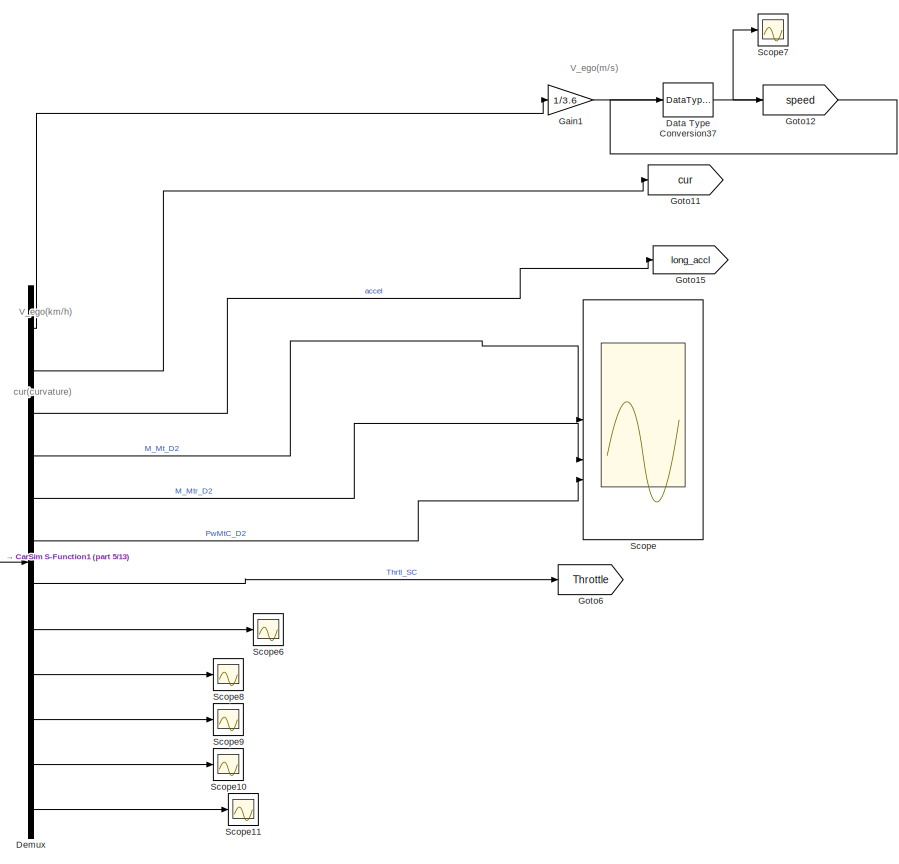
[diagram: root canvas - part 1/13, top center region]
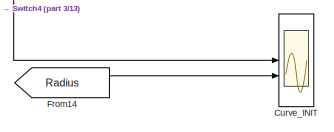
[diagram: root canvas - part 2/13, top left region]
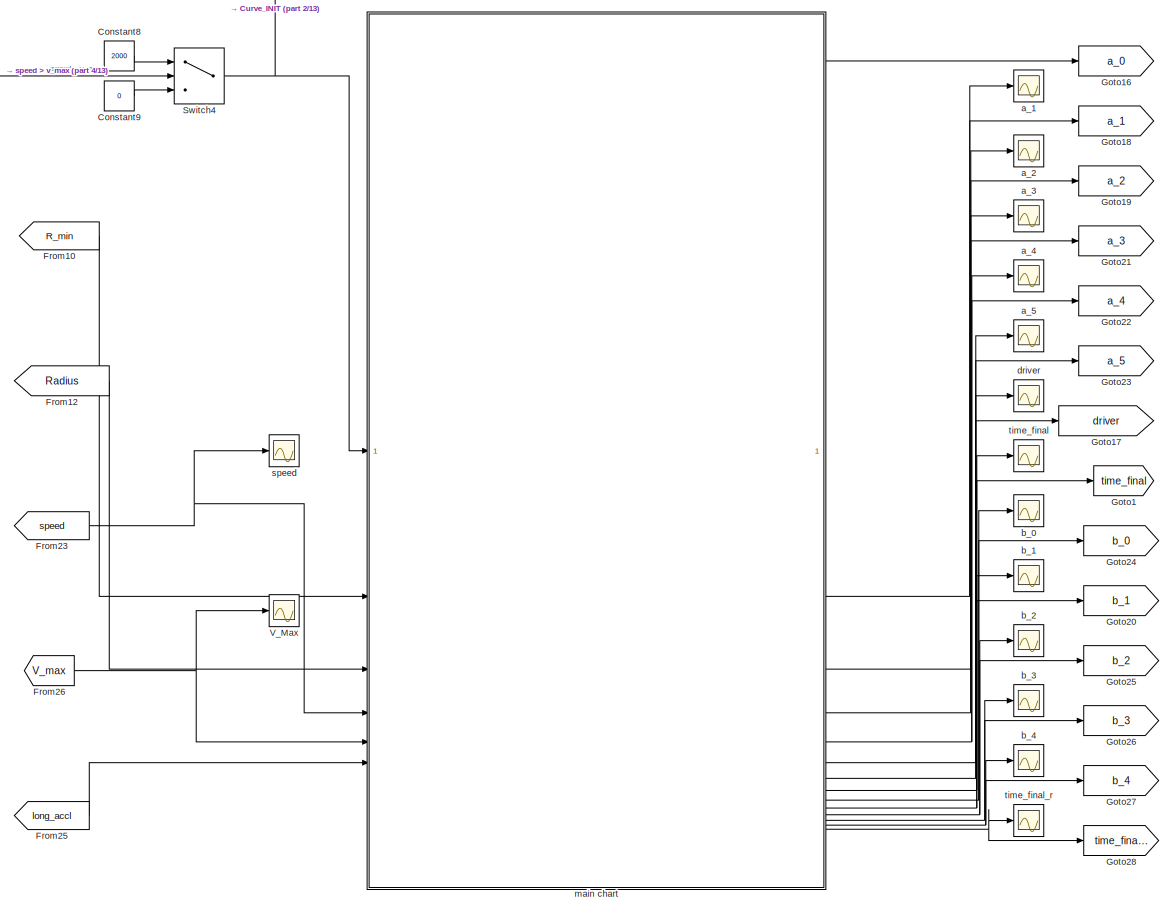
[diagram: root canvas - part 3/13, top left region]
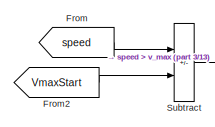
[diagram: root canvas - part 4/13, top left region]
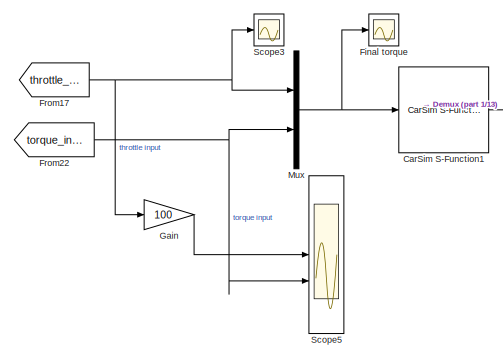
[diagram: root canvas - part 5/13, top center region]
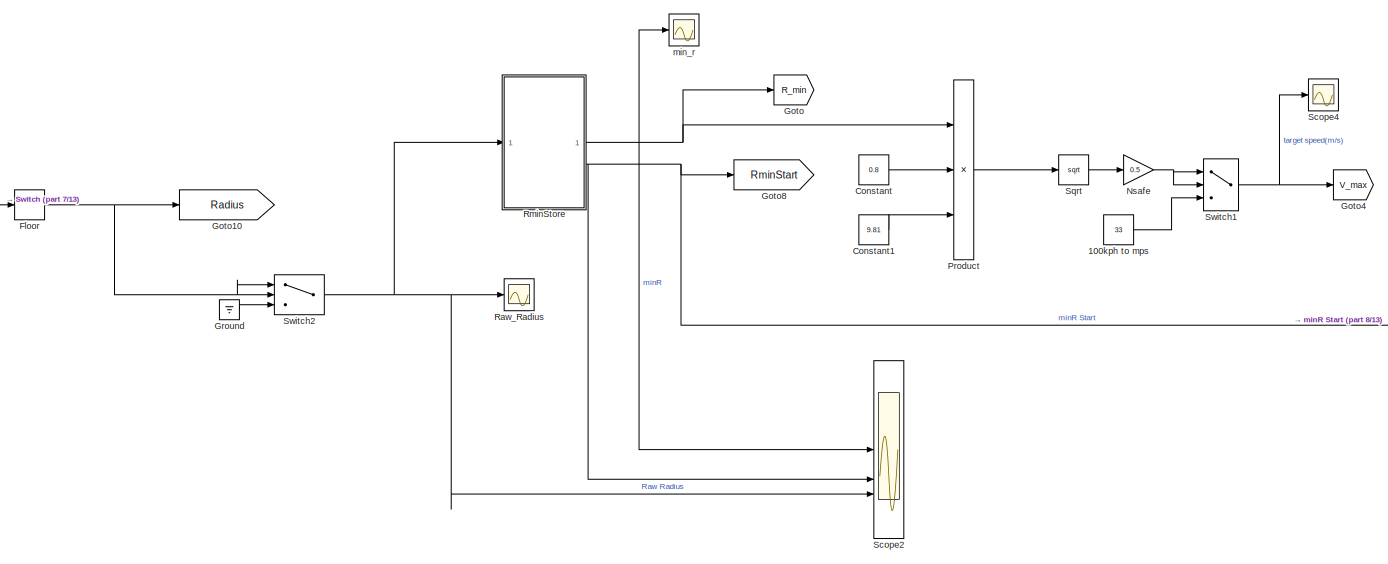
[diagram: root canvas - part 6/13, central region]
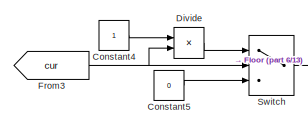
[diagram: root canvas - part 7/13, central region]
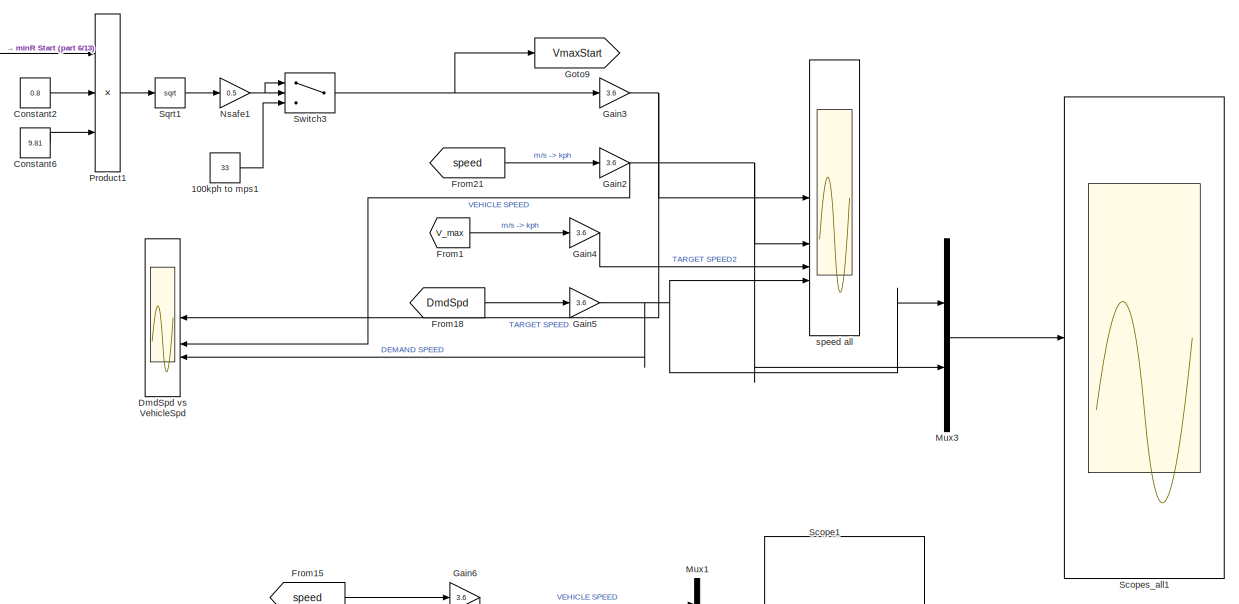
[diagram: root canvas - part 8/13, middle right region]
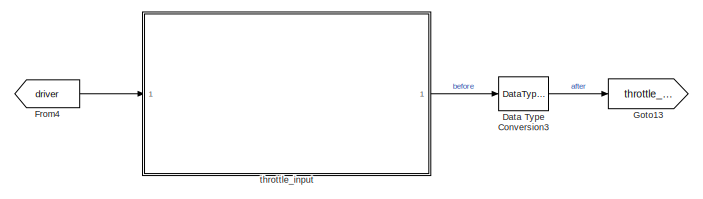
[diagram: root canvas - part 9/13, middle left region]
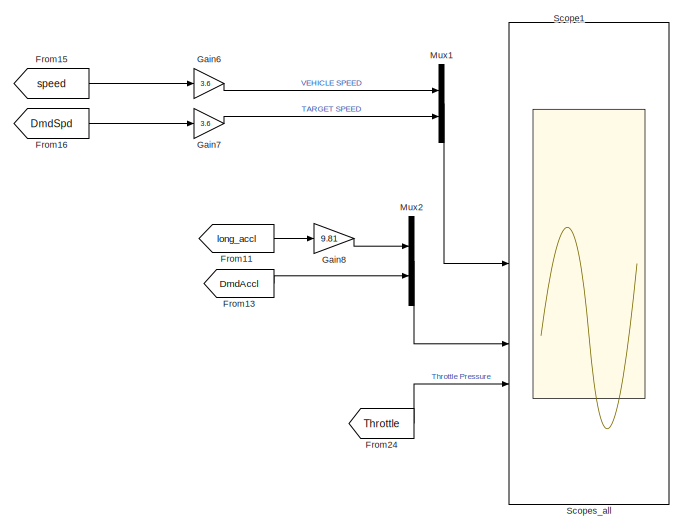
[diagram: root canvas - part 10/13, middle right region]
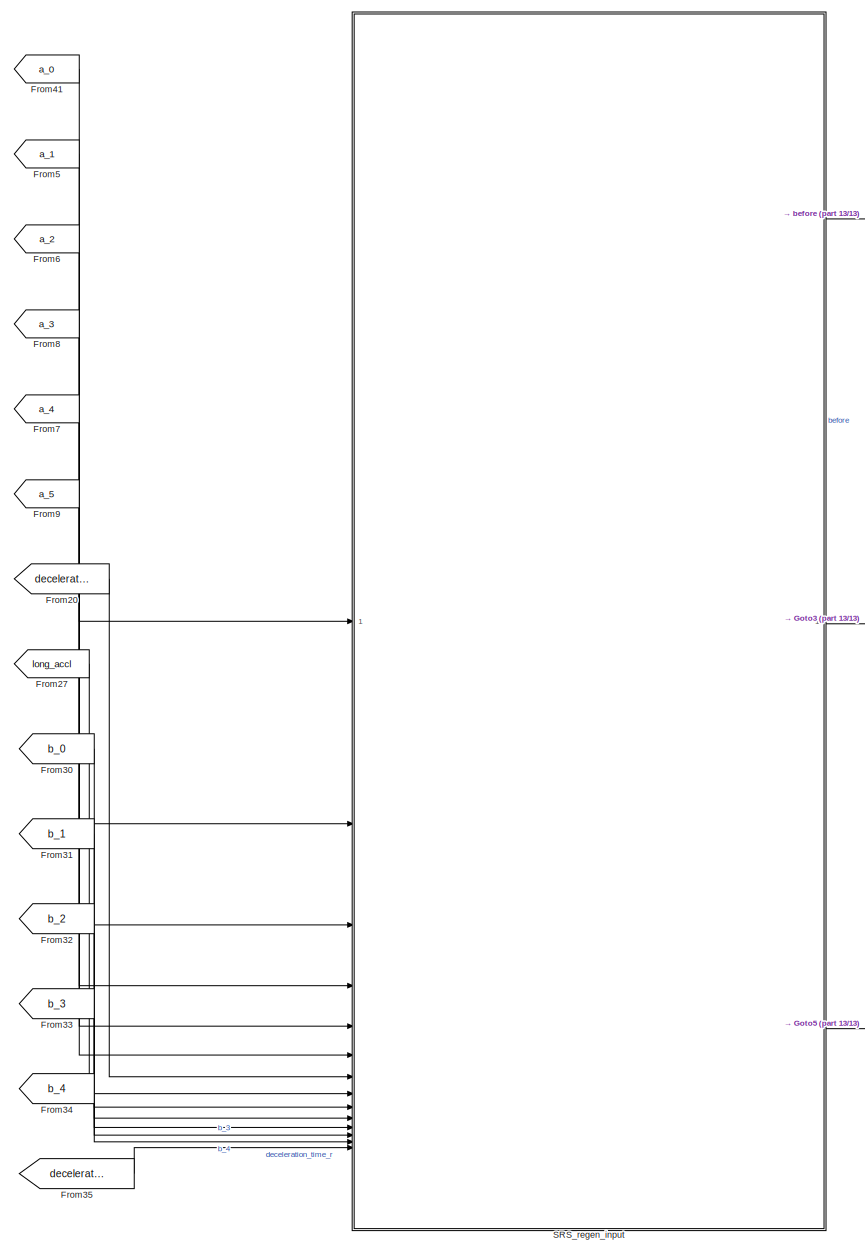
[diagram: root canvas - part 11/13, bottom left region]
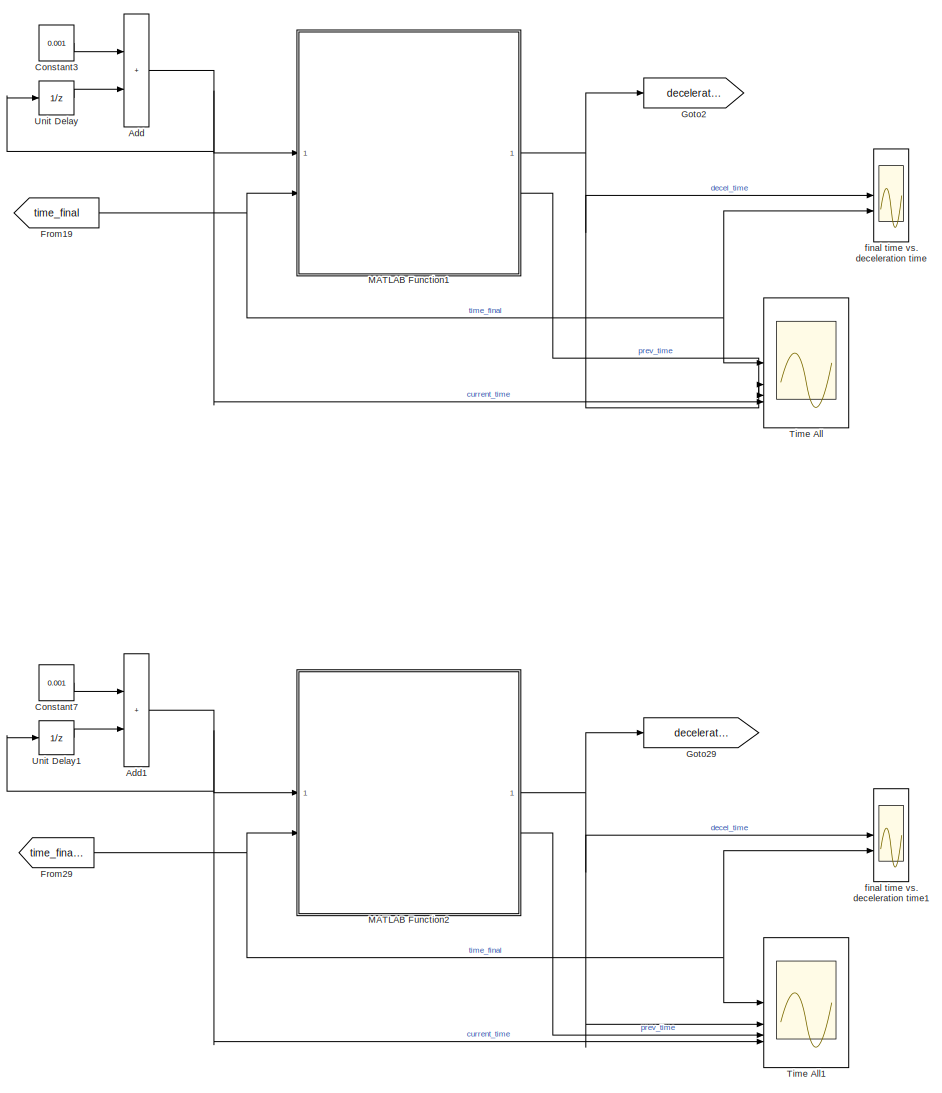
[diagram: root canvas - part 12/13, bottom right region]
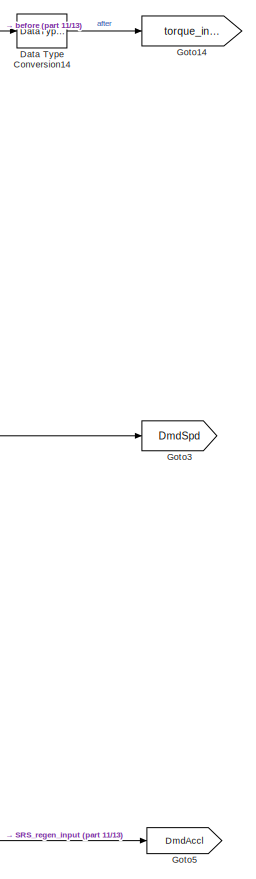
[diagram: root canvas - part 13/13, bottom left region]
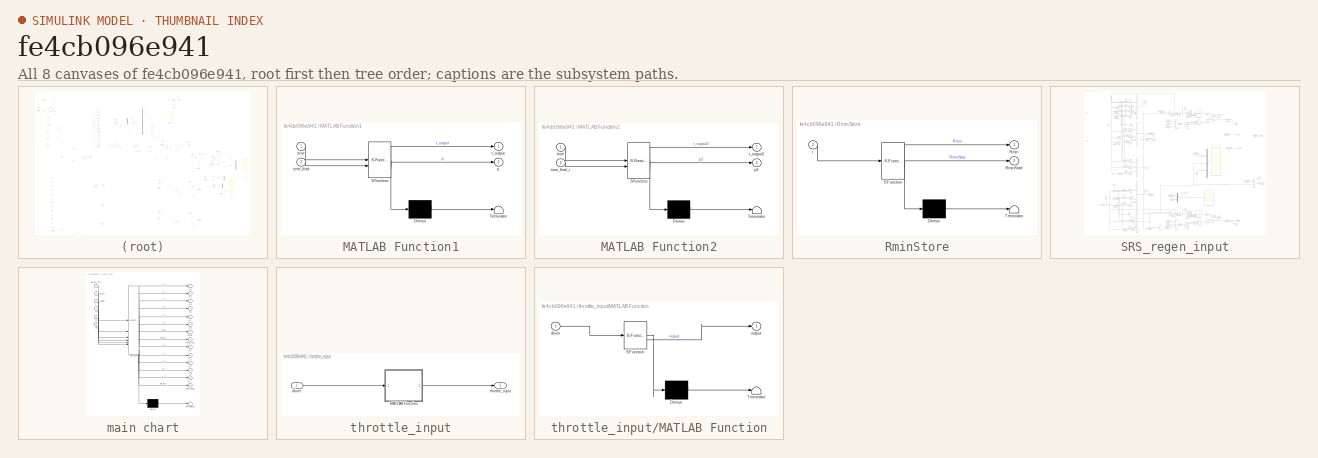
[diagram: thumbnail index - all 8 canvases of the model, root first then tree order]
MODEL slx_fe4cb096e941
KIND model
CONFIG AbsTol = auto
CONFIG EnableMultiTasking = off
CONFIG FixedStep = auto
CONFIG MaxStep = auto
CONFIG MinStep = auto
CONFIG RelTol = 1e-3
CONFIG SampleTimeConstraint = Unconstrained
CONFIG SolverName = VariableStepAuto
CONFIG StartTime = 0.0
CONFIG StopTime = 25
BLOCK [Constant] 100kph to mps
  Value = 33
BLOCK [Constant] 100kph to mps1
  Value = 33
BLOCK [Sum] Add
  IconShape = rectangular
BLOCK [Sum] Add1
  IconShape = rectangular
BLOCK [Reference] CarSim S-Function1  REF=Solver_SF/CarSim S-Function
  Priority = 1
  SourceBlock = Solver_SF/CarSim S-Function
  SourceProductName = CarSim S-Function
  SourceType = Vehicle math model library
BLOCK [Constant] Constant
  Value = 0.8
BLOCK [Constant] Constant1
  Value = 9.81
BLOCK [Constant] Constant2
  Value = 0.8
BLOCK [Constant] Constant3
  Value = 0.001
BLOCK [Constant] Constant4
BLOCK [Constant] Constant5
  Value = 0
BLOCK [Constant] Constant6
  Value = 9.81
BLOCK [Constant] Constant7
  Value = 0.001
BLOCK [Constant] Constant8
  Value = 2000
BLOCK [Constant] Constant9
  Value = 0
BLOCK [Scope] Curve_INIT
  Floating = off
  NumInputPorts = 2
  ScopeSpecificationString = Simulink.scopes.TimeScopeBlockCfg('CurrentConfiguration', extmgr.ConfigurationSet(extmgr.Configuration('Core','General UI',true),extmgr.Configuration('Core','Source UI',true),extmgr.Configuration('Sources','WiredSimulink',true,'DataLoggingVariableName','ScopeData1'),extmgr.Configuration('Visuals','Time Domain',true,'SerializedDisplays',{struct('MinYLimReal','-340.00000','MaxYLimReal','3060.00000',...<+1446ch>
BLOCK [DataTypeConversion] Data Type Conversion14
  OutDataTypeStr = fixdt(1,16,0)
  RndMeth = Nearest
  SaturateOnIntegerOverflow = off
BLOCK [DataTypeConversion] Data Type Conversion3
  OutDataTypeStr = fixdt(1,16,0)
  RndMeth = Nearest
  SaturateOnIntegerOverflow = off
BLOCK [DataTypeConversion] Data Type Conversion37
  OutDataTypeStr = fixdt(1,16,0.01,2^-6)
  RndMeth = Simplest
  SaturateOnIntegerOverflow = off
BLOCK [Demux] Demux
  Outputs = 12
BLOCK [Product] Divide
  Inputs = */
BLOCK [Scope] DmdSpd vs VehicleSpd
  Floating = off
  NumInputPorts = 3
  ScopeSpecificationString = Simulink.scopes.TimeScopeBlockCfg('CurrentConfiguration', extmgr.ConfigurationSet(extmgr.Configuration('Core','General UI',true),extmgr.Configuration('Core','Source UI',true),extmgr.Configuration('Sources','WiredSimulink',true,'DataLoggingVariableName','ScopeData2'),extmgr.Configuration('Visuals','Time Domain',true,'SerializedDisplays',{struct('MinYLimReal','-14.85','MaxYLimReal','133.65','YLabelR...<+1562ch>
BLOCK [Scope] Final torque
  Floating = off
  NumInputPorts = 1
  ScopeSpecificationString = Simulink.scopes.TimeScopeBlockCfg('CurrentConfiguration', extmgr.ConfigurationSet(extmgr.Configuration('Core','General UI',true),extmgr.Configuration('Core','Source UI',true),extmgr.Configuration('Sources','WiredSimulink',true,'DataLoggingVariableName','ScopeData3'),extmgr.Configuration('Visuals','Time Domain',true,'SerializedDisplays',{struct('MinYLimReal','-446.26949','MaxYLimReal','50.02994','Y...<+1469ch>
BLOCK [Rounding] Floor
BLOCK [From] From
  GotoTag = speed
BLOCK [From] From1
  GotoTag = V_max
BLOCK [From] From10
  GotoTag = R_min
BLOCK [From] From11
  GotoTag = long_accl
BLOCK [From] From12
  GotoTag = Radius
BLOCK [From] From13
  GotoTag = DmdAccl
BLOCK [From] From14
  GotoTag = Radius
BLOCK [From] From15
  GotoTag = speed
BLOCK [From] From16
  GotoTag = DmdSpd
BLOCK [From] From17
  GotoTag = throttle_input
BLOCK [From] From18
  GotoTag = DmdSpd
BLOCK [From] From19
  GotoTag = time_final
BLOCK [From] From2
  GotoTag = VmaxStart
BLOCK [From] From20
  GotoTag = deceleration_time
BLOCK [From] From21
  GotoTag = speed
BLOCK [From] From22
  GotoTag = torque_input
BLOCK [From] From23
  GotoTag = speed
BLOCK [From] From24
  GotoTag = Throttle
BLOCK [From] From25
  GotoTag = long_accl
BLOCK [From] From26
  GotoTag = V_max
BLOCK [From] From27
  GotoTag = long_accl
BLOCK [From] From29
  GotoTag = time_final_r
BLOCK [From] From3
  GotoTag = cur
BLOCK [From] From30
  GotoTag = b_0
BLOCK [From] From31
  GotoTag = b_1
BLOCK [From] From32
  GotoTag = b_2
BLOCK [From] From33
  GotoTag = b_3
BLOCK [From] From34
  GotoTag = b_4
BLOCK [From] From35
  GotoTag = deceleration_time_r
BLOCK [From] From4
  GotoTag = driver
BLOCK [From] From41
  GotoTag = a_0
BLOCK [From] From5
  GotoTag = a_1
BLOCK [From] From6
  GotoTag = a_2
BLOCK [From] From7
  GotoTag = a_4
BLOCK [From] From8
  GotoTag = a_3
BLOCK [From] From9
  GotoTag = a_5
BLOCK [Gain] Gain
  Gain = 100
BLOCK [Gain] Gain1
  Gain = 1/3.6
BLOCK [Gain] Gain2
  Gain = 3.6
BLOCK [Gain] Gain3
  Gain = 3.6
BLOCK [Gain] Gain4
  Gain = 3.6
BLOCK [Gain] Gain5
  Gain = 3.6
BLOCK [Gain] Gain6
  Gain = 3.6
BLOCK [Gain] Gain7
  Gain = 3.6
BLOCK [Gain] Gain8
  Gain = 9.81
BLOCK [Goto] Goto
  GotoTag = R_min
BLOCK [Goto] Goto1
  GotoTag = time_final
BLOCK [Goto] Goto10
  GotoTag = Radius
BLOCK [Goto] Goto11
  GotoTag = cur
BLOCK [Goto] Goto12
  GotoTag = speed
BLOCK [Goto] Goto13
  GotoTag = throttle_input
BLOCK [Goto] Goto14
  GotoTag = torque_input
BLOCK [Goto] Goto15
  GotoTag = long_accl
BLOCK [Goto] Goto16
  GotoTag = a_0
BLOCK [Goto] Goto17
  GotoTag = driver
BLOCK [Goto] Goto18
  GotoTag = a_1
BLOCK [Goto] Goto19
  GotoTag = a_2
BLOCK [Goto] Goto2
  GotoTag = deceleration_time
BLOCK [Goto] Goto20
  GotoTag = b_1
BLOCK [Goto] Goto21
  GotoTag = a_3
BLOCK [Goto] Goto22
  GotoTag = a_4
BLOCK [Goto] Goto23
  GotoTag = a_5
BLOCK [Goto] Goto24
  GotoTag = b_0
BLOCK [Goto] Goto25
  GotoTag = b_2
BLOCK [Goto] Goto26
  GotoTag = b_3
BLOCK [Goto] Goto27
  GotoTag = b_4
BLOCK [Goto] Goto28
  GotoTag = time_final_r
BLOCK [Goto] Goto29
  GotoTag = deceleration_time_r
BLOCK [Goto] Goto3
  GotoTag = DmdSpd
BLOCK [Goto] Goto4
  GotoTag = V_max
BLOCK [Goto] Goto5
  GotoTag = DmdAccl
BLOCK [Goto] Goto6
  GotoTag = Throttle
BLOCK [Goto] Goto8
  GotoTag = RminStart
BLOCK [Goto] Goto9
  GotoTag = VmaxStart
BLOCK [Ground] Ground
BLOCK [SubSystem] MATLAB Function1
  ErrorFcn = Stateflow.Translate.translate
  PermitHierarchicalResolution = ExplicitOnly
  SFBlockType = MATLAB Function
  TreatAsAtomicUnit = on
BLOCK [Demux] MATLAB Function1/ Demux 
  Outputs = 1
BLOCK [S-Function] MATLAB Function1/ SFunction 
  EnableBusSupport = on
  FunctionName = sf_sfun
  PortCounts = [2 3]
  SFcnIsStateOwnerBlock = off
  SFunctionDeploymentMode = off
  Tag = Stateflow S-Function 3
BLOCK [Terminator] MATLAB Function1/ Terminator 
BLOCK [Outport] MATLAB Function1/p
  Port = 2
BLOCK [Outport] MATLAB Function1/t_output
BLOCK [Inport] MATLAB Function1/time
BLOCK [Inport] MATLAB Function1/time_final
  Port = 2
BLOCK [SubSystem] MATLAB Function2
  ErrorFcn = Stateflow.Translate.translate
  PermitHierarchicalResolution = ExplicitOnly
  SFBlockType = MATLAB Function
  TreatAsAtomicUnit = on
BLOCK [Demux] MATLAB Function2/ Demux 
  Outputs = 1
BLOCK [S-Function] MATLAB Function2/ SFunction 
  EnableBusSupport = on
  FunctionName = sf_sfun
  PortCounts = [2 3]
  SFcnIsStateOwnerBlock = off
  SFunctionDeploymentMode = off
  Tag = Stateflow S-Function 2
BLOCK [Terminator] MATLAB Function2/ Terminator 
BLOCK [Outport] MATLAB Function2/p2
  Port = 2
BLOCK [Outport] MATLAB Function2/t_output2
BLOCK [Inport] MATLAB Function2/time
BLOCK [Inport] MATLAB Function2/time_final_r
  Port = 2
BLOCK [Mux] Mux
  DisplayOption = bar
  Inputs = 2
BLOCK [Mux] Mux1
  DisplayOption = bar
  Inputs = 2
BLOCK [Mux] Mux2
  DisplayOption = bar
  Inputs = 2
BLOCK [Mux] Mux3
  DisplayOption = bar
  Inputs = 2
BLOCK [Gain] Nsafe
  Gain = 0.5
BLOCK [Gain] Nsafe1
  Gain = 0.5
BLOCK [Product] Product
  Inputs = 3
BLOCK [Product] Product1
  Inputs = 3
BLOCK [Scope] Raw_Radius
  Floating = off
  NumInputPorts = 1
  ScopeSpecificationString = Simulink.scopes.TimeScopeBlockCfg('CurrentConfiguration', extmgr.ConfigurationSet(extmgr.Configuration('Core','General UI',true),extmgr.Configuration('Core','Source UI',true),extmgr.Configuration('Sources','WiredSimulink',true,'DataLoggingVariableName','ScopeData4'),extmgr.Configuration('Visuals','Time Domain',true,'SerializedDisplays',{struct('MinYLimReal','-340.00000','MaxYLimReal','3060.00000',...<+1458ch>
BLOCK [SubSystem] RminStore
  ErrorFcn = Stateflow.Translate.translate
  PermitHierarchicalResolution = ExplicitOnly
  SFBlockType = Chart
  TreatAsAtomicUnit = on
BLOCK [Demux] RminStore/ Demux 
  Outputs = 1
BLOCK [S-Function] RminStore/ SFunction 
  EnableBusSupport = on
  FunctionName = sf_sfun
  PortCounts = [1 3]
  SFcnIsStateOwnerBlock = off
  SFunctionDeploymentMode = off
  Tag = Stateflow S-Function 5
BLOCK [Terminator] RminStore/ Terminator 
BLOCK [Outport] RminStore/Rmin
BLOCK [Outport] RminStore/RminStart
  Port = 2
BLOCK [Inport] RminStore/r
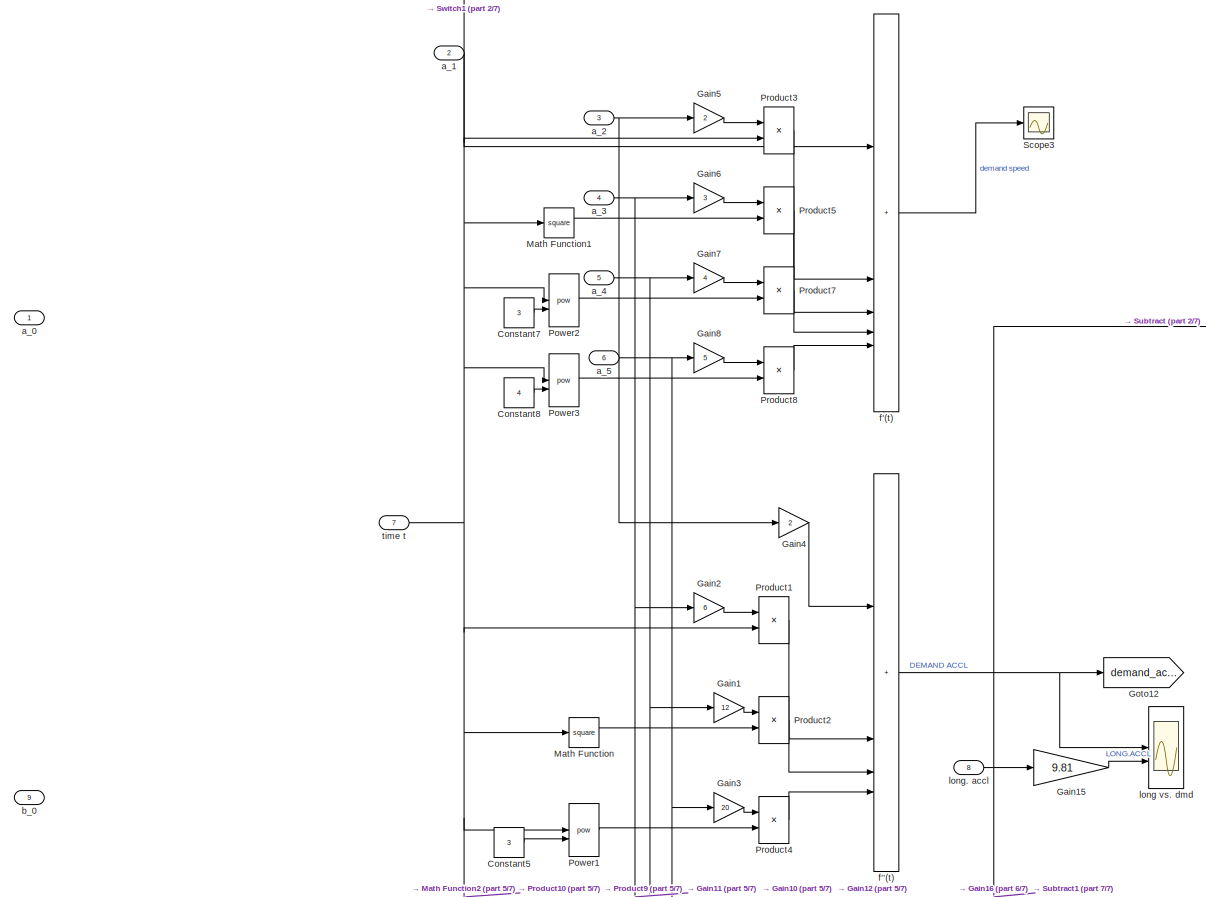
[diagram: SRS_regen_input - part 1/7, top left region]
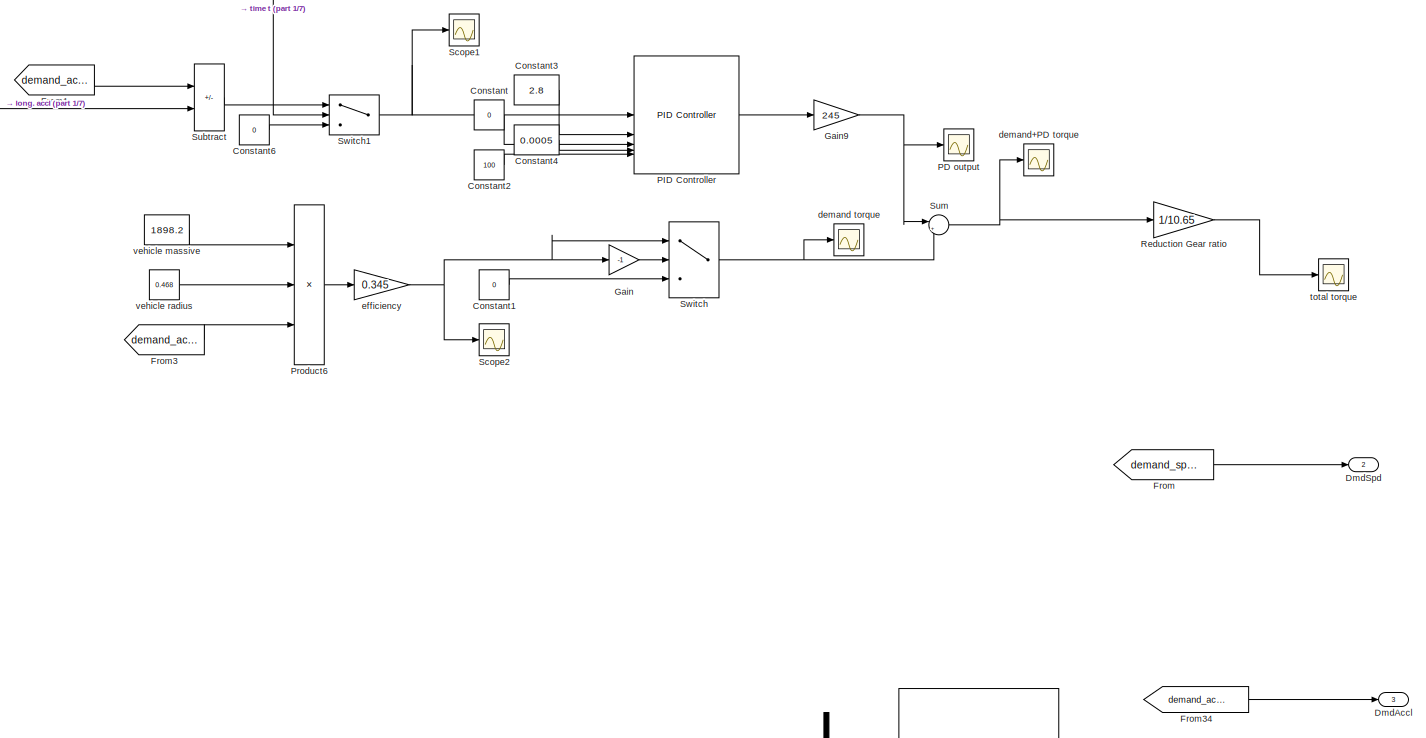
[diagram: SRS_regen_input - part 2/7, top center region]
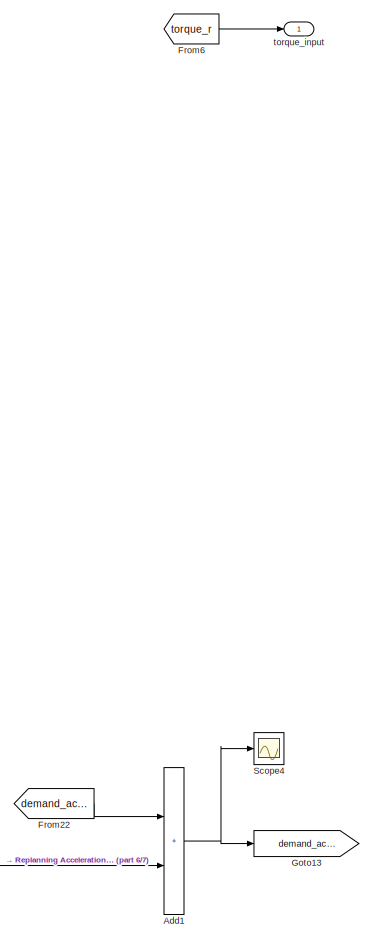
[diagram: SRS_regen_input - part 3/7, middle right region]
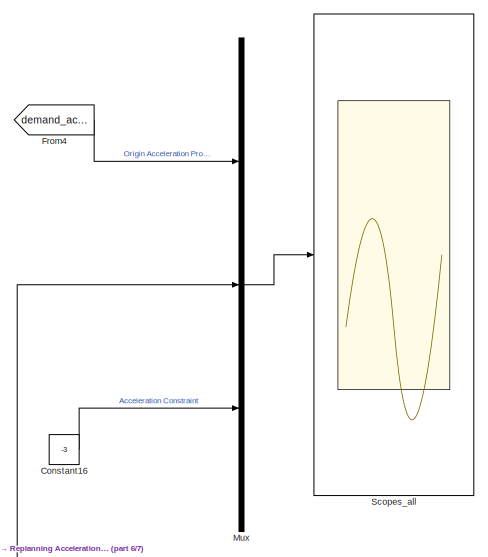
[diagram: SRS_regen_input - part 4/7, middle right region]
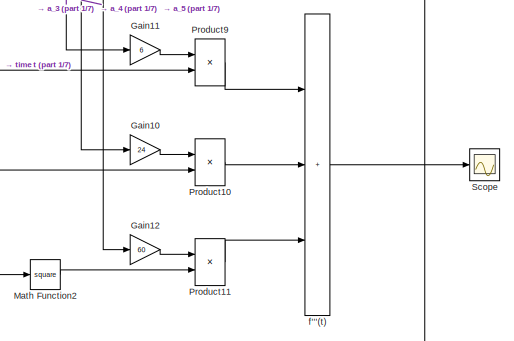
[diagram: SRS_regen_input - part 5/7, middle left region]
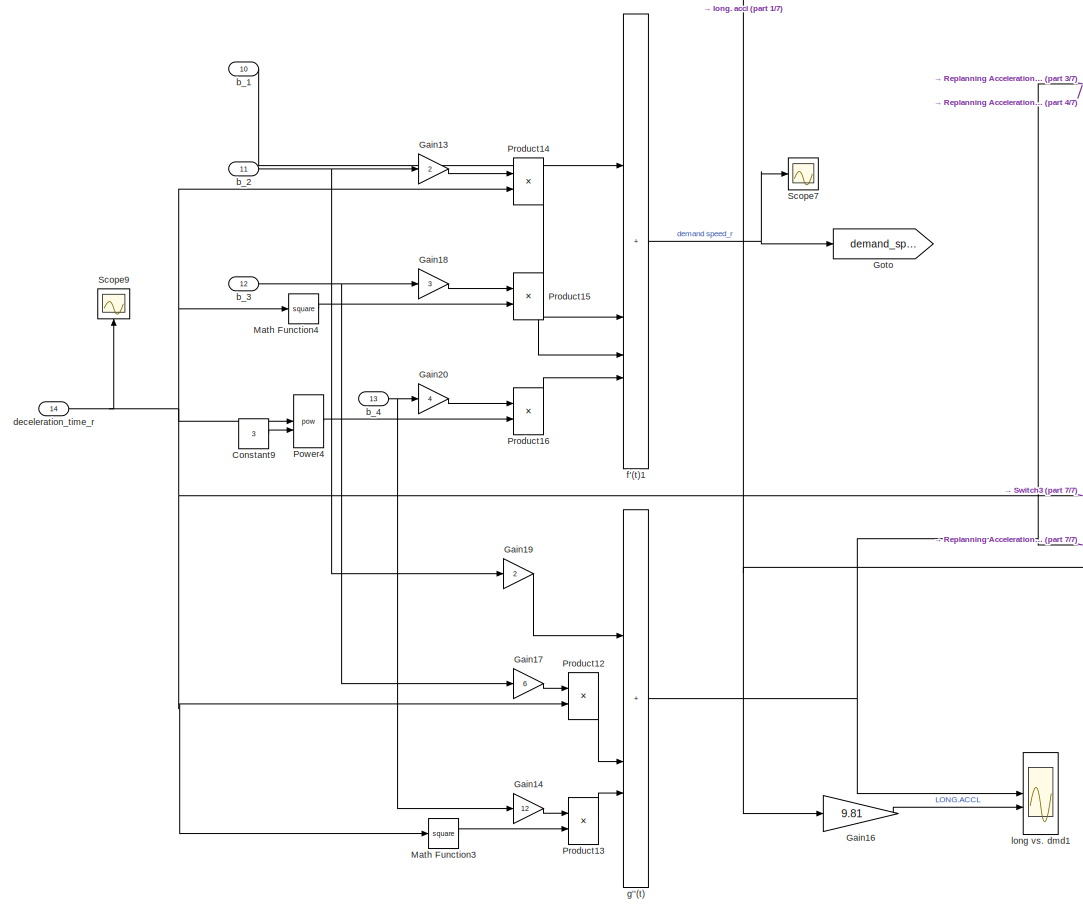
[diagram: SRS_regen_input - part 6/7, bottom left region]
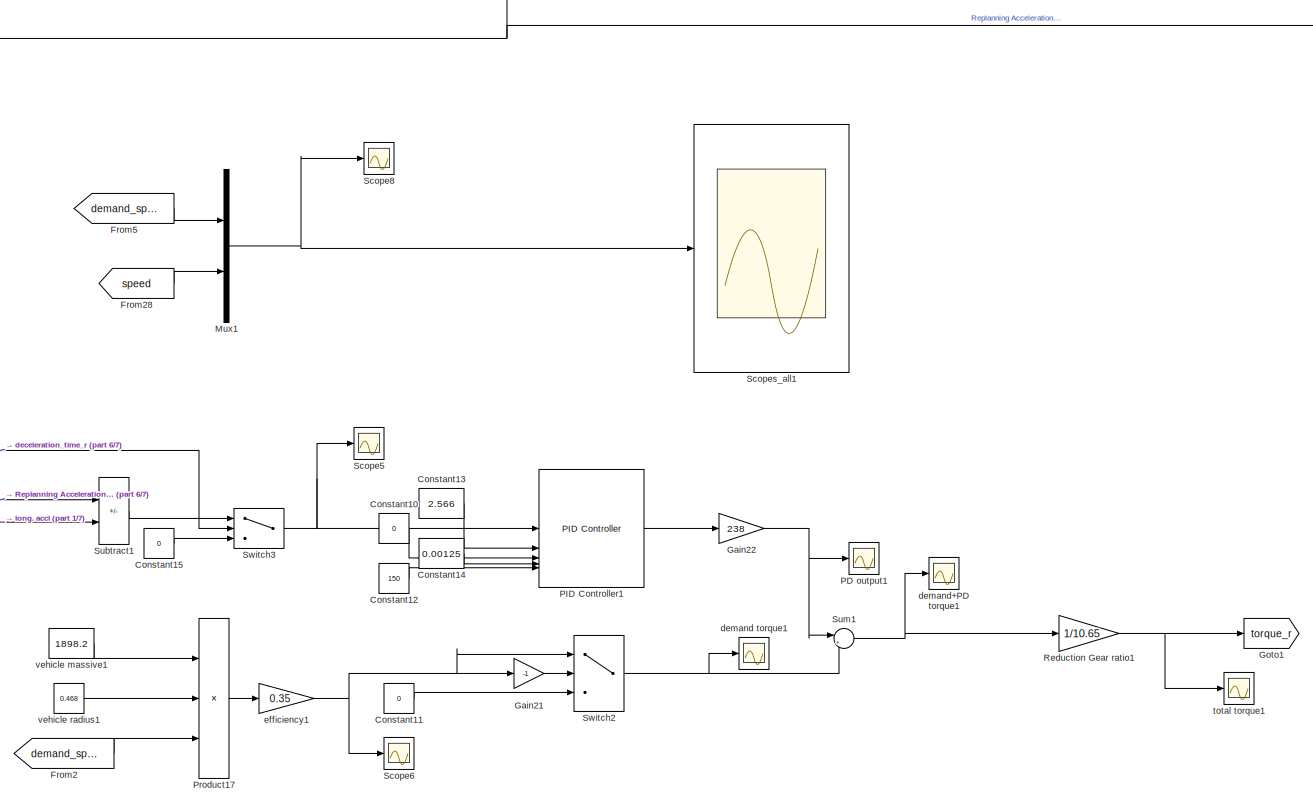
[diagram: SRS_regen_input - part 7/7, bottom center region]
BLOCK [SubSystem] SRS_regen_input
  TreatAsAtomicUnit = on
BLOCK [Sum] SRS_regen_input/Add1
  IconShape = rectangular
BLOCK [Constant] SRS_regen_input/Constant
  Value = 0
BLOCK [Constant] SRS_regen_input/Constant1
  Value = 0
BLOCK [Constant] SRS_regen_input/Constant10
  Value = 0
BLOCK [Constant] SRS_regen_input/Constant11
  Value = 0
BLOCK [Constant] SRS_regen_input/Constant12
  Value = 150
BLOCK [Constant] SRS_regen_input/Constant13
  Value = 2.566
BLOCK [Constant] SRS_regen_input/Constant14
  Value = 0.00125
BLOCK [Constant] SRS_regen_input/Constant15
  Value = 0
BLOCK [Constant] SRS_regen_input/Constant16
  Value = -3
BLOCK [Constant] SRS_regen_input/Constant2
  Value = 100
BLOCK [Constant] SRS_regen_input/Constant3
  Value = 2.8
BLOCK [Constant] SRS_regen_input/Constant4
  Value = 0.0005
BLOCK [Constant] SRS_regen_input/Constant5
  Value = 3
BLOCK [Constant] SRS_regen_input/Constant6
  Value = 0
BLOCK [Constant] SRS_regen_input/Constant7
  Value = 3
BLOCK [Constant] SRS_regen_input/Constant8
  Value = 4
BLOCK [Constant] SRS_regen_input/Constant9
  Value = 3
BLOCK [Outport] SRS_regen_input/DmdAccl
  Port = 3
BLOCK [Outport] SRS_regen_input/DmdSpd
  Port = 2
BLOCK [From] SRS_regen_input/From
  GotoTag = demand_speed_r
BLOCK [From] SRS_regen_input/From1
  GotoTag = demand_accel
BLOCK [From] SRS_regen_input/From2
  GotoTag = demand_speed_r
BLOCK [From] SRS_regen_input/From22
  GotoTag = demand_accel
BLOCK [From] SRS_regen_input/From28
  GotoTag = speed
BLOCK [From] SRS_regen_input/From3
  GotoTag = demand_accel
BLOCK [From] SRS_regen_input/From34
  GotoTag = demand_accel_S
BLOCK [From] SRS_regen_input/From4
  GotoTag = demand_accel
BLOCK [From] SRS_regen_input/From5
  GotoTag = demand_speed_r
BLOCK [From] SRS_regen_input/From6
  GotoTag = torque_r
BLOCK [Gain] SRS_regen_input/Gain
  Gain = -1
BLOCK [Gain] SRS_regen_input/Gain1
  Gain = 12
BLOCK [Gain] SRS_regen_input/Gain10
  Gain = 24
BLOCK [Gain] SRS_regen_input/Gain11
  Gain = 6
BLOCK [Gain] SRS_regen_input/Gain12
  Gain = 60
BLOCK [Gain] SRS_regen_input/Gain13
  Gain = 2
BLOCK [Gain] SRS_regen_input/Gain14
  Gain = 12
BLOCK [Gain] SRS_regen_input/Gain15
  Gain = 9.81
BLOCK [Gain] SRS_regen_input/Gain16
  Gain = 9.81
BLOCK [Gain] SRS_regen_input/Gain17
  Gain = 6
BLOCK [Gain] SRS_regen_input/Gain18
  Gain = 3
BLOCK [Gain] SRS_regen_input/Gain19
  Gain = 2
BLOCK [Gain] SRS_regen_input/Gain2
  Gain = 6
BLOCK [Gain] SRS_regen_input/Gain20
  Gain = 4
BLOCK [Gain] SRS_regen_input/Gain21
  Gain = -1
BLOCK [Gain] SRS_regen_input/Gain22
  Gain = 238
BLOCK [Gain] SRS_regen_input/Gain3
  Gain = 20
BLOCK [Gain] SRS_regen_input/Gain4
  Gain = 2
BLOCK [Gain] SRS_regen_input/Gain5
  Gain = 2
BLOCK [Gain] SRS_regen_input/Gain6
  Gain = 3
BLOCK [Gain] SRS_regen_input/Gain7
  Gain = 4
BLOCK [Gain] SRS_regen_input/Gain8
  Gain = 5
BLOCK [Gain] SRS_regen_input/Gain9
  Gain = 245
BLOCK [Goto] SRS_regen_input/Goto
  GotoTag = demand_speed_r
BLOCK [Goto] SRS_regen_input/Goto1
  GotoTag = torque_r
BLOCK [Goto] SRS_regen_input/Goto12
  GotoTag = demand_accel
BLOCK [Goto] SRS_regen_input/Goto13
  GotoTag = demand_accel_S
BLOCK [Math] SRS_regen_input/Math Function
  Operator = square
BLOCK [Math] SRS_regen_input/Math Function1
  Operator = square
BLOCK [Math] SRS_regen_input/Math Function2
  Operator = square
BLOCK [Math] SRS_regen_input/Math Function3
  Operator = square
BLOCK [Math] SRS_regen_input/Math Function4
  Operator = square
BLOCK [Mux] SRS_regen_input/Mux
  DisplayOption = bar
  Inputs = 3
BLOCK [Mux] SRS_regen_input/Mux1
  DisplayOption = bar
  Inputs = 2
BLOCK [Scope] SRS_regen_input/PD output
  Floating = off
  NumInputPorts = 1
  ScopeSpecificationString = Simulink.scopes.TimeScopeBlockCfg('CurrentConfiguration', extmgr.ConfigurationSet(extmgr.Configuration('Core','General UI',true),extmgr.Configuration('Core','Source UI',true),extmgr.Configuration('Sources','WiredSimulink',true,'DataLoggingVariableName','ScopeData1'),extmgr.Configuration('Visuals','Time Domain',true,'SerializedDisplays',{struct('MinYLimReal','-1095.07692','MaxYLimReal','511.7642','...<+1457ch>
BLOCK [Scope] SRS_regen_input/PD output1
  Floating = off
  NumInputPorts = 1
  ScopeSpecificationString = Simulink.scopes.TimeScopeBlockCfg('CurrentConfiguration', extmgr.ConfigurationSet(extmgr.Configuration('Core','General UI',true),extmgr.Configuration('Core','Source UI',true),extmgr.Configuration('Sources','WiredSimulink',true,'DataLoggingVariableName','ScopeData1'),extmgr.Configuration('Visuals','Time Domain',true,'SerializedDisplays',{struct('MinYLimReal','-2034.53219','MaxYLimReal','226.05913',...<+1459ch>
BLOCK [Reference] SRS_regen_input/PID Controller  REF=slpidlib/PID Controller
  LibrarySourceBlock = simulink/Continuous/PID Controller
  SourceBlock = slpidlib/PID Controller
  SourceType = PID 1dof
BLOCK [Reference] SRS_regen_input/PID Controller1  REF=slpidlib/PID Controller
  LibrarySourceBlock = simulink/Continuous/PID Controller
  SourceBlock = slpidlib/PID Controller
  SourceType = PID 1dof
BLOCK [Math] SRS_regen_input/Power1
  Operator = pow
BLOCK [Math] SRS_regen_input/Power2
  Operator = pow
BLOCK [Math] SRS_regen_input/Power3
  Operator = pow
BLOCK [Math] SRS_regen_input/Power4
  Operator = pow
BLOCK [Product] SRS_regen_input/Product1
BLOCK [Product] SRS_regen_input/Product10
BLOCK [Product] SRS_regen_input/Product11
BLOCK [Product] SRS_regen_input/Product12
BLOCK [Product] SRS_regen_input/Product13
BLOCK [Product] SRS_regen_input/Product14
BLOCK [Product] SRS_regen_input/Product15
BLOCK [Product] SRS_regen_input/Product16
BLOCK [Product] SRS_regen_input/Product17
  Inputs = 3
BLOCK [Product] SRS_regen_input/Product2
BLOCK [Product] SRS_regen_input/Product3
BLOCK [Product] SRS_regen_input/Product4
BLOCK [Product] SRS_regen_input/Product5
BLOCK [Product] SRS_regen_input/Product6
  Inputs = 3
BLOCK [Product] SRS_regen_input/Product7
BLOCK [Product] SRS_regen_input/Product8
BLOCK [Product] SRS_regen_input/Product9
BLOCK [Gain] SRS_regen_input/Reduction Gear ratio
  Gain = 1/10.65
BLOCK [Gain] SRS_regen_input/Reduction Gear ratio1
  Gain = 1/10.65
BLOCK [Scope] SRS_regen_input/Scope
  Floating = off
  NumInputPorts = 1
  ScopeSpecificationString = Simulink.scopes.TimeScopeBlockCfg('CurrentConfiguration', extmgr.ConfigurationSet(extmgr.Configuration('Core','General UI',true),extmgr.Configuration('Core','Source UI',true),extmgr.Configuration('Sources','WiredSimulink',true,'DataLoggingVariableName','ScopeData1'),extmgr.Configuration('Visuals','Time Domain',true,'SerializedDisplays',{struct('MinYLimReal','-1.00000','MaxYLimReal','1.00000','YLab...<+1369ch>
BLOCK [Scope] SRS_regen_input/Scope1
  Floating = off
  NumInputPorts = 1
  ScopeSpecificationString = Simulink.scopes.TimeScopeBlockCfg('CurrentConfiguration', extmgr.ConfigurationSet(extmgr.Configuration('Core','General UI',true),extmgr.Configuration('Core','Source UI',true),extmgr.Configuration('Sources','WiredSimulink',true,'DataLoggingVariableName','ScopeData1'),extmgr.Configuration('Visuals','Time Domain',true,'SerializedDisplays',{struct('MinYLimReal','-1.18286','MaxYLimReal','0.42088','YLab...<+1422ch>
BLOCK [Scope] SRS_regen_input/Scope2
  Floating = off
  NumInputPorts = 1
  ScopeSpecificationString = Simulink.scopes.TimeScopeBlockCfg('CurrentConfiguration', extmgr.ConfigurationSet(extmgr.Configuration('Core','General UI',true),extmgr.Configuration('Core','Source UI',true),extmgr.Configuration('Sources','WiredSimulink',true,'DataLoggingVariableName','ScopeData1'),extmgr.Configuration('Visuals','Time Domain',true,'SerializedDisplays',{struct('MinYLimReal','-922.0159','MaxYLimReal','163.75974','Y...<+1454ch>
BLOCK [Scope] SRS_regen_input/Scope3
  Floating = off
  NumInputPorts = 1
  ScopeSpecificationString = Simulink.scopes.TimeScopeBlockCfg('CurrentConfiguration', extmgr.ConfigurationSet(extmgr.Configuration('Core','General UI',true),extmgr.Configuration('Core','Source UI',true),extmgr.Configuration('Sources','WiredSimulink',true,'DataLoggingVariableName','ScopeData1'),extmgr.Configuration('Visuals','Time Domain',true,'SerializedDisplays',{struct('MinYLimReal','-1.00000','MaxYLimReal','1.00000','YLab...<+1371ch>
BLOCK [Scope] SRS_regen_input/Scope4
  Floating = off
  NumInputPorts = 1
  ScopeSpecificationString = Simulink.scopes.TimeScopeBlockCfg('CurrentConfiguration', extmgr.ConfigurationSet(extmgr.Configuration('Core','General UI',true),extmgr.Configuration('Core','Source UI',true),extmgr.Configuration('Sources','WiredSimulink',true,'DataLoggingVariableName','ScopeData2'),extmgr.Configuration('Visuals','Time Domain',true,'SerializedDisplays',{struct('MinYLimReal','-3.32527','MaxYLimReal','0.36947','YLab...<+1363ch>
BLOCK [Scope] SRS_regen_input/Scope5
  Floating = off
  NumInputPorts = 1
  ScopeSpecificationString = Simulink.scopes.TimeScopeBlockCfg('CurrentConfiguration', extmgr.ConfigurationSet(extmgr.Configuration('Core','General UI',true),extmgr.Configuration('Core','Source UI',true),extmgr.Configuration('Sources','WiredSimulink',true,'DataLoggingVariableName','ScopeData2'),extmgr.Configuration('Visuals','Time Domain',true,'SerializedDisplays',{struct('MinYLimReal','-3.02689','MaxYLimReal','0.33632','YLab...<+1422ch>
BLOCK [Scope] SRS_regen_input/Scope6
  Floating = off
  NumInputPorts = 1
  ScopeSpecificationString = Simulink.scopes.TimeScopeBlockCfg('CurrentConfiguration', extmgr.ConfigurationSet(extmgr.Configuration('Core','General UI',true),extmgr.Configuration('Core','Source UI',true),extmgr.Configuration('Sources','WiredSimulink',true,'DataLoggingVariableName','ScopeData3'),extmgr.Configuration('Visuals','Time Domain',true,'SerializedDisplays',{struct('MinYLimReal','-922.0159','MaxYLimReal','163.75974','Y...<+1454ch>
BLOCK [Scope] SRS_regen_input/Scope7
  Floating = off
  NumInputPorts = 1
  ScopeSpecificationString = Simulink.scopes.TimeScopeBlockCfg('CurrentConfiguration', extmgr.ConfigurationSet(extmgr.Configuration('Core','General UI',true),extmgr.Configuration('Core','Source UI',true),extmgr.Configuration('Sources','WiredSimulink',true,'DataLoggingVariableName','ScopeData7'),extmgr.Configuration('Visuals','Time Domain',true,'SerializedDisplays',{struct('MinYLimReal','-3.0019','MaxYLimReal','27.01709','YLab...<+1394ch>
BLOCK [Scope] SRS_regen_input/Scope8
  Floating = off
  NumInputPorts = 1
  ScopeSpecificationString = Simulink.scopes.TimeScopeBlockCfg('CurrentConfiguration', extmgr.ConfigurationSet(extmgr.Configuration('Core','General UI',true),extmgr.Configuration('Core','Source UI',true),extmgr.Configuration('Sources','WiredSimulink',true,'DataLoggingVariableName','ScopeData2'),extmgr.Configuration('Visuals','Time Domain',true,'SerializedDisplays',{struct('MinYLimReal','-3.0019','MaxYLimReal','27.01709','YLab...<+1384ch>
BLOCK [Scope] SRS_regen_input/Scope9
  Floating = off
  NameLocation = right
  NumInputPorts = 1
  ScopeSpecificationString = Simulink.scopes.TimeScopeBlockCfg('CurrentConfiguration', extmgr.ConfigurationSet(extmgr.Configuration('Core','General UI',true),extmgr.Configuration('Core','Source UI',true),extmgr.Configuration('Sources','WiredSimulink',true,'DataLoggingVariableName','ScopeData3'),extmgr.Configuration('Visuals','Time Domain',true,'SerializedDisplays',{struct('MinYLimReal','-0.6','MaxYLimReal','5.4','YLabelReal',...<+1354ch>
BLOCK [Scope] SRS_regen_input/Scopes_all
  Floating = off
  NumInputPorts = 1
  ScopeSpecificationString = Simulink.scopes.TimeScopeBlockCfg('CurrentConfiguration', extmgr.ConfigurationSet(extmgr.Configuration('Core','General UI',true,'FigureColor',[1 1 1]),extmgr.Configuration('Core','Source UI',true),extmgr.Configuration('Sources','WiredSimulink',true,'DataLoggingSaveFormat','StructureWithTime','DataLoggingDecimation','1','DataLoggingDecimateData',true,'DataLoggingVariableName','ScopeData1'),extmgr.C...<+12199ch>
BLOCK [Scope] SRS_regen_input/Scopes_all1
  Floating = off
  NumInputPorts = 1
  ScopeSpecificationString = Simulink.scopes.TimeScopeBlockCfg('CurrentConfiguration', extmgr.ConfigurationSet(extmgr.Configuration('Core','General UI',true,'FigureColor',[1 1 1]),extmgr.Configuration('Core','Source UI',true),extmgr.Configuration('Sources','WiredSimulink',true,'DataLoggingSaveFormat','StructureWithTime','DataLoggingDecimation','1','DataLoggingDecimateData',true,'DataLoggingVariableName','ScopeData1'),extmgr.C...<+12199ch>
BLOCK [Sum] SRS_regen_input/Subtract
  IconShape = rectangular
  Inputs = +-
BLOCK [Sum] SRS_regen_input/Subtract1
  IconShape = rectangular
  Inputs = +-
BLOCK [Sum] SRS_regen_input/Sum
  Inputs = |++
BLOCK [Sum] SRS_regen_input/Sum1
  Inputs = |++
BLOCK [Switch] SRS_regen_input/Switch
  Criteria = u2 > Threshold
  InputSameDT = off
  SaturateOnIntegerOverflow = off
BLOCK [Switch] SRS_regen_input/Switch1
  Criteria = u2 ~= 0
  InputSameDT = off
  SaturateOnIntegerOverflow = off
BLOCK [Switch] SRS_regen_input/Switch2
  Criteria = u2 > Threshold
  InputSameDT = off
  SaturateOnIntegerOverflow = off
BLOCK [Switch] SRS_regen_input/Switch3
  Criteria = u2 ~= 0
  InputSameDT = off
  SaturateOnIntegerOverflow = off
BLOCK [Inport] SRS_regen_input/a_0
BLOCK [Inport] SRS_regen_input/a_1
  Port = 2
BLOCK [Inport] SRS_regen_input/a_2
  Port = 3
BLOCK [Inport] SRS_regen_input/a_3
  Port = 4
BLOCK [Inport] SRS_regen_input/a_4
  Port = 5
BLOCK [Inport] SRS_regen_input/a_5
  Port = 6
BLOCK [Inport] SRS_regen_input/b_0
  Port = 9
BLOCK [Inport] SRS_regen_input/b_1
  Port = 10
BLOCK [Inport] SRS_regen_input/b_2
  Port = 11
BLOCK [Inport] SRS_regen_input/b_3
  Port = 12
BLOCK [Inport] SRS_regen_input/b_4
  Port = 13
BLOCK [Inport] SRS_regen_input/deceleration_time_r
  Port = 14
BLOCK [Scope] SRS_regen_input/demand torque
  Floating = off
  NumInputPorts = 1
  ScopeSpecificationString = Simulink.scopes.TimeScopeBlockCfg('CurrentConfiguration', extmgr.ConfigurationSet(extmgr.Configuration('Core','General UI',true),extmgr.Configuration('Core','Source UI',true),extmgr.Configuration('Sources','WiredSimulink',true,'DataLoggingVariableName','ScopeData2'),extmgr.Configuration('Visuals','Time Domain',true,'SerializedDisplays',{struct('MinYLimReal','-477.7245','MaxYLimReal','53.0805','YLa...<+1471ch>
BLOCK [Scope] SRS_regen_input/demand torque1
  Floating = off
  NumInputPorts = 1
  ScopeSpecificationString = Simulink.scopes.TimeScopeBlockCfg('CurrentConfiguration', extmgr.ConfigurationSet(extmgr.Configuration('Core','General UI',true),extmgr.Configuration('Core','Source UI',true),extmgr.Configuration('Sources','WiredSimulink',true,'DataLoggingVariableName','ScopeData4'),extmgr.Configuration('Visuals','Time Domain',true,'SerializedDisplays',{struct('MinYLimReal','-1.00000','MaxYLimReal','1.00000','YLab...<+1463ch>
BLOCK [Scope] SRS_regen_input/demand+PD torque
  Floating = off
  NumInputPorts = 1
  ScopeSpecificationString = Simulink.scopes.TimeScopeBlockCfg('CurrentConfiguration', extmgr.ConfigurationSet(extmgr.Configuration('Core','General UI',true),extmgr.Configuration('Core','Source UI',true),extmgr.Configuration('Sources','WiredSimulink',true,'DataLoggingVariableName','ScopeData1'),extmgr.Configuration('Visuals','Time Domain',true,'SerializedDisplays',{struct('MinYLimReal','-651.14864','MaxYLimReal','137.09682','...<+1470ch>
BLOCK [Scope] SRS_regen_input/demand+PD torque1
  Floating = off
  NumInputPorts = 1
  ScopeSpecificationString = Simulink.scopes.TimeScopeBlockCfg('CurrentConfiguration', extmgr.ConfigurationSet(extmgr.Configuration('Core','General UI',true),extmgr.Configuration('Core','Source UI',true),extmgr.Configuration('Sources','WiredSimulink',true,'DataLoggingVariableName','ScopeData5'),extmgr.Configuration('Visuals','Time Domain',true,'SerializedDisplays',{struct('MinYLimReal','-651.14864','MaxYLimReal','137.09682','...<+1470ch>
BLOCK [Gain] SRS_regen_input/efficiency
  Gain = 0.345
BLOCK [Gain] SRS_regen_input/efficiency1
  Gain = 0.35
BLOCK [Sum] SRS_regen_input/f'''(t)
  IconShape = rectangular
  Inputs = +++
BLOCK [Sum] SRS_regen_input/f''(t)
  IconShape = rectangular
  Inputs = 4
BLOCK [Sum] SRS_regen_input/f'(t)
  IconShape = rectangular
  Inputs = 5
BLOCK [Sum] SRS_regen_input/f'(t)1
  IconShape = rectangular
  Inputs = 4
BLOCK [Sum] SRS_regen_input/g''(t)
  IconShape = rectangular
  Inputs = 3
BLOCK [Scope] SRS_regen_input/long vs. dmd
  Floating = off
  NumInputPorts = 2
  ScopeSpecificationString = Simulink.scopes.TimeScopeBlockCfg('CurrentConfiguration', extmgr.ConfigurationSet(extmgr.Configuration('Core','General UI',true),extmgr.Configuration('Core','Source UI',true),extmgr.Configuration('Sources','WiredSimulink',true,'DataLoggingVariableName','ScopeData1'),extmgr.Configuration('Visuals','Time Domain',true,'SerializedDisplays',{struct('MinYLimReal','-3.69204','MaxYLimReal','4.17499','YLab...<+1526ch>
BLOCK [Scope] SRS_regen_input/long vs. dmd1
  Floating = off
  NumInputPorts = 2
  ScopeSpecificationString = Simulink.scopes.TimeScopeBlockCfg('CurrentConfiguration', extmgr.ConfigurationSet(extmgr.Configuration('Core','General UI',true),extmgr.Configuration('Core','Source UI',true),extmgr.Configuration('Sources','WiredSimulink',true,'DataLoggingVariableName','ScopeData12'),extmgr.Configuration('Visuals','Time Domain',true,'SerializedDisplays',{struct('MinYLimReal','-3.74891','MaxYLimReal','4.18223','YLa...<+1546ch>
BLOCK [Inport] SRS_regen_input/long. accl
  Port = 8
BLOCK [Inport] SRS_regen_input/time t
  Port = 7
BLOCK [Outport] SRS_regen_input/torque_input
BLOCK [Scope] SRS_regen_input/total torque
  Floating = off
  NumInputPorts = 1
  ScopeSpecificationString = Simulink.scopes.TimeScopeBlockCfg('CurrentConfiguration', extmgr.ConfigurationSet(extmgr.Configuration('Core','General UI',true),extmgr.Configuration('Core','Source UI',true),extmgr.Configuration('Sources','WiredSimulink',true,'DataLoggingVariableName','ScopeData2'),extmgr.Configuration('Visuals','Time Domain',true,'SerializedDisplays',{struct('MinYLimReal','-77.43478','MaxYLimReal','27.39597','YL...<+1573ch>
BLOCK [Scope] SRS_regen_input/total torque1
  Floating = off
  NumInputPorts = 1
  ScopeSpecificationString = Simulink.scopes.TimeScopeBlockCfg('CurrentConfiguration', extmgr.ConfigurationSet(extmgr.Configuration('Core','General UI',true),extmgr.Configuration('Core','Source UI',true),extmgr.Configuration('Sources','WiredSimulink',true,'DataLoggingVariableName','ScopeData6'),extmgr.Configuration('Visuals','Time Domain',true,'SerializedDisplays',{struct('MinYLimReal','-77.43478','MaxYLimReal','27.39597','YL...<+1573ch>
BLOCK [Constant] SRS_regen_input/vehicle massive
  Value = 1898.2
BLOCK [Constant] SRS_regen_input/vehicle massive1
  Value = 1898.2
BLOCK [Constant] SRS_regen_input/vehicle radius
  Value = 0.468
BLOCK [Constant] SRS_regen_input/vehicle radius1
  Value = 0.468
BLOCK [Scope] Scope
  Floating = off
  NumInputPorts = 3
  ScopeSpecificationString = Simulink.scopes.TimeScopeBlockCfg('CurrentConfiguration', extmgr.ConfigurationSet(extmgr.Configuration('Core','General UI',true),extmgr.Configuration('Core','Source UI',true),extmgr.Configuration('Sources','WiredSimulink',true,'DataLoggingVariableName','ScopeData5'),extmgr.Configuration('Visuals','Time Domain',true,'SerializedDisplays',{struct('MinYLimReal','-65.97912','MaxYLimReal','396.22009','Y...<+1398ch>
BLOCK [Scope] Scope1
  Floating = off
  NumInputPorts = 1
  ScopeSpecificationString = Simulink.scopes.TimeScopeBlockCfg('CurrentConfiguration', extmgr.ConfigurationSet(extmgr.Configuration('Core','General UI',true),extmgr.Configuration('Core','Source UI',true),extmgr.Configuration('Sources','WiredSimulink',true,'DataLoggingVariableName','ScopeData6'),extmgr.Configuration('Visuals','Time Domain',true,'SerializedDisplays',{struct('MinYLimReal','-256.5','MaxYLimReal','2868.5','YLabelR...<+1358ch>
BLOCK [Scope] Scope10
  Floating = off
  NumInputPorts = 1
  ScopeSpecificationString = Simulink.scopes.TimeScopeBlockCfg('CurrentConfiguration', extmgr.ConfigurationSet(extmgr.Configuration('Core','General UI',true),extmgr.Configuration('Core','Source UI',true),extmgr.Configuration('Sources','WiredSimulink',true,'DataLoggingVariableName','ScopeData4'),extmgr.Configuration('Visuals','Time Domain',true),extmgr.Configuration('Tools','Plot Navigation',true),extmgr.Configuration('Tools',...<+40ch>
BLOCK [Scope] Scope11
  Floating = off
  NumInputPorts = 1
  ScopeSpecificationString = Simulink.scopes.TimeScopeBlockCfg('CurrentConfiguration', extmgr.ConfigurationSet(extmgr.Configuration('Core','General UI',true),extmgr.Configuration('Core','Source UI',true),extmgr.Configuration('Sources','WiredSimulink',true,'DataLoggingVariableName','ScopeData5'),extmgr.Configuration('Visuals','Time Domain',true),extmgr.Configuration('Tools','Plot Navigation',true),extmgr.Configuration('Tools',...<+40ch>
BLOCK [Scope] Scope2
  Floating = off
  NumInputPorts = 3
  ScopeSpecificationString = Simulink.scopes.TimeScopeBlockCfg('CurrentConfiguration', extmgr.ConfigurationSet(extmgr.Configuration('Core','General UI',true),extmgr.Configuration('Core','Source UI',true),extmgr.Configuration('Sources','WiredSimulink',true,'DataLoggingVariableName','ScopeData7'),extmgr.Configuration('Visuals','Time Domain',true,'SerializedDisplays',{struct('MinYLimReal','-258.18364','MaxYLimReal','151.02244','...<+1474ch>
BLOCK [Scope] Scope3
  Floating = off
  NumInputPorts = 1
  ScopeSpecificationString = Simulink.scopes.TimeScopeBlockCfg('CurrentConfiguration', extmgr.ConfigurationSet(extmgr.Configuration('Core','General UI',true),extmgr.Configuration('Core','Source UI',true),extmgr.Configuration('Sources','WiredSimulink',true,'DataLoggingVariableName','ScopeData8'),extmgr.Configuration('Visuals','Time Domain',true,'SerializedDisplays',{struct('MinYLimReal','-0.05','MaxYLimReal','0.45','YLabelReal...<+1426ch>
BLOCK [Scope] Scope4
  Floating = off
  NumInputPorts = 1
  ScopeSpecificationString = Simulink.scopes.TimeScopeBlockCfg('CurrentConfiguration', extmgr.ConfigurationSet(extmgr.Configuration('Core','General UI',true),extmgr.Configuration('Core','Source UI',true),extmgr.Configuration('Sources','WiredSimulink',true,'DataLoggingVariableName','ScopeData1'),extmgr.Configuration('Visuals','Time Domain',true,'SerializedDisplays',{struct('MinYLimReal','12.25123','MaxYLimReal','35.30542','YLa...<+1382ch>
BLOCK [Scope] Scope5
  Floating = off
  NumInputPorts = 2
  ScopeSpecificationString = Simulink.scopes.TimeScopeBlockCfg('CurrentConfiguration', extmgr.ConfigurationSet(extmgr.Configuration('Core','General UI',true),extmgr.Configuration('Core','Source UI',true),extmgr.Configuration('Sources','WiredSimulink',true,'DataLoggingVariableName','ScopeData9'),extmgr.Configuration('Visuals','Time Domain',true,'SerializedDisplays',{struct('MinYLimReal','-27.2291','MaxYLimReal','47.4699','YLab...<+1434ch>
BLOCK [Scope] Scope6
  Floating = off
  NumInputPorts = 1
  ScopeSpecificationString = Simulink.scopes.TimeScopeBlockCfg('CurrentConfiguration', extmgr.ConfigurationSet(extmgr.Configuration('Core','General UI',true),extmgr.Configuration('Core','Source UI',true),extmgr.Configuration('Sources','WiredSimulink',true,'DataLoggingVariableName','ScopeData1'),extmgr.Configuration('Visuals','Time Domain',true),extmgr.Configuration('Tools','Plot Navigation',true),extmgr.Configuration('Tools',...<+40ch>
BLOCK [Scope] Scope7
  Floating = off
  NumInputPorts = 1
  ScopeSpecificationString = Simulink.scopes.TimeScopeBlockCfg('CurrentConfiguration', extmgr.ConfigurationSet(extmgr.Configuration('Core','General UI',true),extmgr.Configuration('Core','Source UI',true),extmgr.Configuration('Sources','WiredSimulink',true,'DataLoggingVariableName','ScopeData10'),extmgr.Configuration('Visuals','Time Domain',true,'SerializedDisplays',{struct('MinYLimReal','-5.0317','MaxYLimReal','45.28532','YLa...<+1384ch>
BLOCK [Scope] Scope8
  Floating = off
  NumInputPorts = 1
  ScopeSpecificationString = Simulink.scopes.TimeScopeBlockCfg('CurrentConfiguration', extmgr.ConfigurationSet(extmgr.Configuration('Core','General UI',true),extmgr.Configuration('Core','Source UI',true),extmgr.Configuration('Sources','WiredSimulink',true,'DataLoggingVariableName','ScopeData2'),extmgr.Configuration('Visuals','Time Domain',true),extmgr.Configuration('Tools','Plot Navigation',true),extmgr.Configuration('Tools',...<+40ch>
BLOCK [Scope] Scope9
  Floating = off
  NumInputPorts = 1
  ScopeSpecificationString = Simulink.scopes.TimeScopeBlockCfg('CurrentConfiguration', extmgr.ConfigurationSet(extmgr.Configuration('Core','General UI',true),extmgr.Configuration('Core','Source UI',true),extmgr.Configuration('Sources','WiredSimulink',true,'DataLoggingVariableName','ScopeData3'),extmgr.Configuration('Visuals','Time Domain',true),extmgr.Configuration('Tools','Plot Navigation',true),extmgr.Configuration('Tools',...<+40ch>
BLOCK [Scope] Scopes_all
  Floating = off
  NumInputPorts = 3
  ScopeSpecificationString = Simulink.scopes.TimeScopeBlockCfg('CurrentConfiguration', extmgr.ConfigurationSet(extmgr.Configuration('Core','General UI',true,'FigureColor',[1 1 1]),extmgr.Configuration('Core','Source UI',true),extmgr.Configuration('Sources','WiredSimulink',true,'DataLoggingSaveFormat','StructureWithTime','DataLoggingDecimation','1','DataLoggingDecimateData',true,'DataLoggingVariableName','ScopeData11'),extmgr....<+12220ch>
BLOCK [Scope] Scopes_all1
  Floating = off
  NumInputPorts = 1
  ScopeSpecificationString = Simulink.scopes.TimeScopeBlockCfg('CurrentConfiguration', extmgr.ConfigurationSet(extmgr.Configuration('Core','General UI',true,'FigureColor',[1 1 1]),extmgr.Configuration('Core','Source UI',true),extmgr.Configuration('Sources','WiredSimulink',true,'DataLoggingSaveFormat','StructureWithTime','DataLoggingDecimation','1','DataLoggingDecimateData',true,'DataLoggingVariableName','ScopeData4'),extmgr.C...<+12148ch>
BLOCK [Sqrt] Sqrt
BLOCK [Sqrt] Sqrt1
BLOCK [Sum] Subtract
  IconShape = rectangular
  Inputs = +-
BLOCK [Switch] Switch
  Criteria = u2 ~= 0
  InputSameDT = off
  SaturateOnIntegerOverflow = off
BLOCK [Switch] Switch1
  Criteria = u2 > Threshold
  InputSameDT = off
  SaturateOnIntegerOverflow = off
BLOCK [Switch] Switch2
  Criteria = u2 ~= 0
  InputSameDT = off
  SaturateOnIntegerOverflow = off
BLOCK [Switch] Switch3
  Criteria = u2 > Threshold
  InputSameDT = off
  SaturateOnIntegerOverflow = off
BLOCK [Switch] Switch4
  Criteria = u2 > Threshold
  InputSameDT = off
  SaturateOnIntegerOverflow = off
BLOCK [Scope] Time All
  Floating = off
  NumInputPorts = 4
  ScopeSpecificationString = Simulink.scopes.TimeScopeBlockCfg('CurrentConfiguration', extmgr.ConfigurationSet(extmgr.Configuration('Core','General UI',true),extmgr.Configuration('Core','Source UI',true),extmgr.Configuration('Sources','WiredSimulink',true,'DataLoggingVariableName','ScopeData12'),extmgr.Configuration('Visuals','Time Domain',true,'SerializedDisplays',{struct('MinYLimReal','-16.2275','MaxYLimReal','146.0475','YL...<+1485ch>
BLOCK [Scope] Time All1
  Floating = off
  NumInputPorts = 4
  ScopeSpecificationString = Simulink.scopes.TimeScopeBlockCfg('CurrentConfiguration', extmgr.ConfigurationSet(extmgr.Configuration('Core','General UI',true),extmgr.Configuration('Core','Source UI',true),extmgr.Configuration('Sources','WiredSimulink',true,'DataLoggingVariableName','ScopeData15'),extmgr.Configuration('Visuals','Time Domain',true,'SerializedDisplays',{struct('MinYLimReal','-16.2275','MaxYLimReal','146.0475','YL...<+1486ch>
BLOCK [UnitDelay] Unit Delay
  HasFrameUpgradeWarning = on
  SampleTime = -1
BLOCK [UnitDelay] Unit Delay1
  HasFrameUpgradeWarning = on
  SampleTime = -1
BLOCK [Scope] V_Max
  Floating = off
  NumInputPorts = 1
  ScopeSpecificationString = Simulink.scopes.TimeScopeBlockCfg('CurrentConfiguration', extmgr.ConfigurationSet(extmgr.Configuration('Core','General UI',true),extmgr.Configuration('Core','Source UI',true),extmgr.Configuration('Sources','WiredSimulink',true,'DataLoggingVariableName','ScopeData13'),extmgr.Configuration('Visuals','Time Domain',true,'SerializedDisplays',{struct('MinYLimReal','8.31973','MaxYLimReal','29.94225','YLa...<+1452ch>
BLOCK [Scope] a_1
  Floating = off
  NameLocation = right
  NumInputPorts = 1
  ScopeSpecificationString = Simulink.scopes.TimeScopeBlockCfg('CurrentConfiguration', extmgr.ConfigurationSet(extmgr.Configuration('Core','General UI',true),extmgr.Configuration('Core','Source UI',true),extmgr.Configuration('Sources','WiredSimulink',true,'DataLoggingVariableName','ScopeData14'),extmgr.Configuration('Visuals','Time Domain',true,'SerializedDisplays',{struct('MinYLimReal','-2.8537','MaxYLimReal','25.68331','YLa...<+1452ch>
BLOCK [Scope] a_2
  Floating = off
  NameLocation = right
  NumInputPorts = 1
  ScopeSpecificationString = Simulink.scopes.TimeScopeBlockCfg('CurrentConfiguration', extmgr.ConfigurationSet(extmgr.Configuration('Core','General UI',true),extmgr.Configuration('Core','Source UI',true),extmgr.Configuration('Sources','WiredSimulink',true,'DataLoggingVariableName','ScopeData15'),extmgr.Configuration('Visuals','Time Domain',true,'SerializedDisplays',{struct('MinYLimReal','-0.00897','MaxYLimReal','0.08073','YLa...<+1446ch>
BLOCK [Scope] a_3
  Floating = off
  NameLocation = right
  NumInputPorts = 1
  ScopeSpecificationString = Simulink.scopes.TimeScopeBlockCfg('CurrentConfiguration', extmgr.ConfigurationSet(extmgr.Configuration('Core','General UI',true),extmgr.Configuration('Core','Source UI',true),extmgr.Configuration('Sources','WiredSimulink',true,'DataLoggingVariableName','ScopeData16'),extmgr.Configuration('Visuals','Time Domain',true,'SerializedDisplays',{struct('MinYLimReal','-0.66534','MaxYLimReal','0.07393','YLa...<+1447ch>
BLOCK [Scope] a_4
  Floating = off
  NameLocation = right
  NumInputPorts = 1
  ScopeSpecificationString = Simulink.scopes.TimeScopeBlockCfg('CurrentConfiguration', extmgr.ConfigurationSet(extmgr.Configuration('Core','General UI',true),extmgr.Configuration('Core','Source UI',true),extmgr.Configuration('Sources','WiredSimulink',true,'DataLoggingVariableName','ScopeData17'),extmgr.Configuration('Visuals','Time Domain',true,'SerializedDisplays',{struct('MinYLimReal','-0.00611','MaxYLimReal','0.05502','YLa...<+1420ch>
BLOCK [Scope] a_5
  Floating = off
  NameLocation = right
  NumInputPorts = 1
  ScopeSpecificationString = Simulink.scopes.TimeScopeBlockCfg('CurrentConfiguration', extmgr.ConfigurationSet(extmgr.Configuration('Core','General UI',true),extmgr.Configuration('Core','Source UI',true),extmgr.Configuration('Sources','WiredSimulink',true,'DataLoggingVariableName','ScopeData18'),extmgr.Configuration('Visuals','Time Domain',true,'SerializedDisplays',{struct('MinYLimReal','-0.00084','MaxYLimReal','0.00009','YLa...<+1447ch>
BLOCK [Scope] b_0
  Floating = off
  NameLocation = right
  NumInputPorts = 1
  ScopeSpecificationString = Simulink.scopes.TimeScopeBlockCfg('CurrentConfiguration', extmgr.ConfigurationSet(extmgr.Configuration('Core','General UI',true),extmgr.Configuration('Core','Source UI',true),extmgr.Configuration('Sources','WiredSimulink',true,'DataLoggingVariableName','ScopeData3'),extmgr.Configuration('Visuals','Time Domain',true,'SerializedDisplays',{struct('MinYLimReal','-2.8537','MaxYLimReal','25.68331','YLab...<+1447ch>
BLOCK [Scope] b_1
  Floating = off
  NameLocation = right
  NumInputPorts = 1
  ScopeSpecificationString = Simulink.scopes.TimeScopeBlockCfg('CurrentConfiguration', extmgr.ConfigurationSet(extmgr.Configuration('Core','General UI',true),extmgr.Configuration('Core','Source UI',true),extmgr.Configuration('Sources','WiredSimulink',true,'DataLoggingVariableName','ScopeData4'),extmgr.Configuration('Visuals','Time Domain',true,'SerializedDisplays',{struct('MinYLimReal','-3.0019','MaxYLimReal','27.01709','YLab...<+1450ch>
BLOCK [Scope] b_2
  Floating = off
  NameLocation = right
  NumInputPorts = 1
  ScopeSpecificationString = Simulink.scopes.TimeScopeBlockCfg('CurrentConfiguration', extmgr.ConfigurationSet(extmgr.Configuration('Core','General UI',true),extmgr.Configuration('Core','Source UI',true),extmgr.Configuration('Sources','WiredSimulink',true,'DataLoggingVariableName','ScopeData5'),extmgr.Configuration('Visuals','Time Domain',true,'SerializedDisplays',{struct('MinYLimReal','-0.0000000000000017','MaxYLimReal','0.0...<+1509ch>
BLOCK [Scope] b_3
  Floating = off
  NameLocation = right
  NumInputPorts = 1
  ScopeSpecificationString = Simulink.scopes.TimeScopeBlockCfg('CurrentConfiguration', extmgr.ConfigurationSet(extmgr.Configuration('Core','General UI',true),extmgr.Configuration('Core','Source UI',true),extmgr.Configuration('Sources','WiredSimulink',true,'DataLoggingVariableName','ScopeData6'),extmgr.Configuration('Visuals','Time Domain',true,'SerializedDisplays',{struct('MinYLimReal','-0.46184','MaxYLimReal','0.05132','YLab...<+1423ch>
BLOCK [Scope] b_4
  Floating = off
  NameLocation = right
  NumInputPorts = 1
  ScopeSpecificationString = Simulink.scopes.TimeScopeBlockCfg('CurrentConfiguration', extmgr.ConfigurationSet(extmgr.Configuration('Core','General UI',true),extmgr.Configuration('Core','Source UI',true),extmgr.Configuration('Sources','WiredSimulink',true,'DataLoggingVariableName','ScopeData2'),extmgr.Configuration('Visuals','Time Domain',true,'SerializedDisplays',{struct('MinYLimReal','-0.00535','MaxYLimReal','0.04811','YLab...<+1446ch>
BLOCK [Scope] driver
  Floating = off
  NameLocation = right
  NumInputPorts = 1
  ScopeSpecificationString = Simulink.scopes.TimeScopeBlockCfg('CurrentConfiguration', extmgr.ConfigurationSet(extmgr.Configuration('Core','General UI',true),extmgr.Configuration('Core','Source UI',true),extmgr.Configuration('Sources','WiredSimulink',true,'DataLoggingVariableName','ScopeData19'),extmgr.Configuration('Visuals','Time Domain',true,'SerializedDisplays',{struct('MinYLimReal','-0.375','MaxYLimReal','3.375','YLabelR...<+1388ch>
BLOCK [Scope] final time vs. deceleration time
  Floating = off
  NumInputPorts = 2
  ScopeSpecificationString = Simulink.scopes.TimeScopeBlockCfg('CurrentConfiguration', extmgr.ConfigurationSet(extmgr.Configuration('Core','General UI',true),extmgr.Configuration('Core','Source UI',true),extmgr.Configuration('Sources','WiredSimulink',true,'DataLoggingVariableName','ScopeData20'),extmgr.Configuration('Visuals','Time Domain',true,'SerializedDisplays',{struct('MinYLimReal','4.14669','MaxYLimReal','4.14837','YLab...<+1500ch>
BLOCK [Scope] final time vs. deceleration time1
  Floating = off
  NumInputPorts = 2
  ScopeSpecificationString = Simulink.scopes.TimeScopeBlockCfg('CurrentConfiguration', extmgr.ConfigurationSet(extmgr.Configuration('Core','General UI',true),extmgr.Configuration('Core','Source UI',true),extmgr.Configuration('Sources','WiredSimulink',true,'DataLoggingVariableName','ScopeData16'),extmgr.Configuration('Visuals','Time Domain',true,'SerializedDisplays',{struct('MinYLimReal','4.77518','MaxYLimReal','4.82502','YLab...<+1499ch>
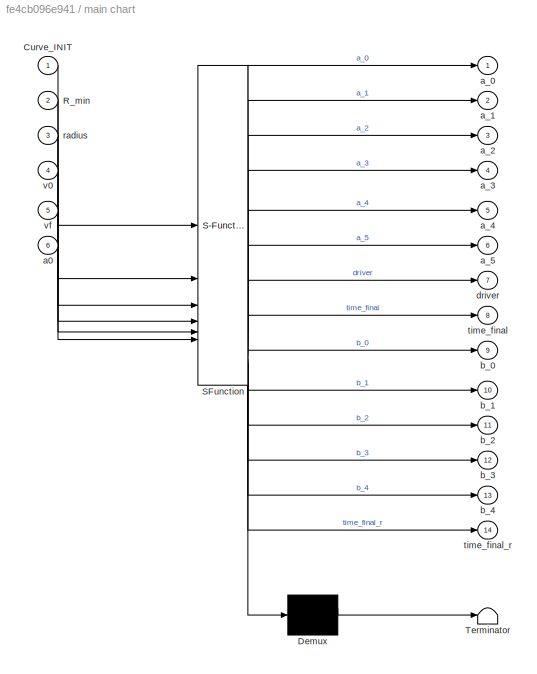
BLOCK [SubSystem] main chart
  ErrorFcn = Stateflow.Translate.translate
  PermitHierarchicalResolution = ExplicitOnly
  SFBlockType = Chart
  TreatAsAtomicUnit = on
BLOCK [Demux] main chart/ Demux 
  Outputs = 1
BLOCK [S-Function] main chart/ SFunction 
  EnableBusSupport = on
  FunctionName = sf_sfun
  PortCounts = [6 15]
  SFcnIsStateOwnerBlock = off
  SFunctionDeploymentMode = off
  Tag = Stateflow S-Function 1
BLOCK [Terminator] main chart/ Terminator 
BLOCK [Inport] main chart/Curve_INIT
BLOCK [Inport] main chart/R_min
  Port = 2
BLOCK [Inport] main chart/a0
  Port = 6
BLOCK [Outport] main chart/a_0
BLOCK [Outport] main chart/a_1
  Port = 2
BLOCK [Outport] main chart/a_2
  Port = 3
BLOCK [Outport] main chart/a_3
  Port = 4
BLOCK [Outport] main chart/a_4
  Port = 5
BLOCK [Outport] main chart/a_5
  Port = 6
BLOCK [Outport] main chart/b_0
  Port = 9
BLOCK [Outport] main chart/b_1
  Port = 10
BLOCK [Outport] main chart/b_2
  Port = 11
BLOCK [Outport] main chart/b_3
  Port = 12
BLOCK [Outport] main chart/b_4
  Port = 13
BLOCK [Outport] main chart/driver
  Port = 7
BLOCK [Inport] main chart/radius
  Port = 3
BLOCK [Outport] main chart/time_final
  Port = 8
BLOCK [Outport] main chart/time_final_r
  Port = 14
BLOCK [Inport] main chart/v0
  Port = 4
BLOCK [Inport] main chart/vf
  Port = 5
BLOCK [Scope] min_r
  Floating = off
  NumInputPorts = 1
  ScopeSpecificationString = Simulink.scopes.TimeScopeBlockCfg('CurrentConfiguration', extmgr.ConfigurationSet(extmgr.Configuration('Core','General UI',true),extmgr.Configuration('Core','Source UI',true),extmgr.Configuration('Sources','WiredSimulink',true,'DataLoggingVariableName','ScopeData21'),extmgr.Configuration('Visuals','Time Domain',true,'SerializedDisplays',{struct('MinYLimReal','-27.5','MaxYLimReal','247.5','YLabelRe...<+1423ch>
BLOCK [Scope] speed
  Floating = off
  NumInputPorts = 1
  ScopeSpecificationString = Simulink.scopes.TimeScopeBlockCfg('CurrentConfiguration', extmgr.ConfigurationSet(extmgr.Configuration('Core','General UI',true),extmgr.Configuration('Core','Source UI',true),extmgr.Configuration('Sources','WiredSimulink',true,'DataLoggingVariableName','ScopeData22'),extmgr.Configuration('Visuals','Time Domain',true,'SerializedDisplays',{struct('MinYLimReal','-2.5507','MaxYLimReal','22.95634','YLa...<+1384ch>
BLOCK [Scope] speed all
  Floating = off
  NumInputPorts = 4
  ScopeSpecificationString = Simulink.scopes.TimeScopeBlockCfg('CurrentConfiguration', extmgr.ConfigurationSet(extmgr.Configuration('Core','General UI',true),extmgr.Configuration('Core','Source UI',true),extmgr.Configuration('Sources','WiredSimulink',true,'DataLoggingVariableName','ScopeData23'),extmgr.Configuration('Visuals','Time Domain',true,'SerializedDisplays',{struct('MinYLimReal','-14.85328','MaxYLimReal','133.67951','...<+1568ch>
BLOCK [SubSystem] throttle_input
  SystemSampleTime = 0.01
  TreatAsAtomicUnit = on
BLOCK [SubSystem] throttle_input/MATLAB Function
  ErrorFcn = Stateflow.Translate.translate
  PermitHierarchicalResolution = ExplicitOnly
  SFBlockType = MATLAB Function
  TreatAsAtomicUnit = on
BLOCK [Demux] throttle_input/MATLAB Function/ Demux 
  Outputs = 1
BLOCK [S-Function] throttle_input/MATLAB Function/ SFunction 
  EnableBusSupport = on
  FunctionName = sf_sfun
  PortCounts = [1 2]
  SFcnIsStateOwnerBlock = off
  SFunctionDeploymentMode = off
  Tag = Stateflow S-Function 4
BLOCK [Terminator] throttle_input/MATLAB Function/ Terminator 
BLOCK [Inport] throttle_input/MATLAB Function/driver
BLOCK [Outport] throttle_input/MATLAB Function/output
BLOCK [Inport] throttle_input/driver
BLOCK [Outport] throttle_input/throttle_input
BLOCK [Scope] time_final
  Floating = off
  NameLocation = right
  NumInputPorts = 1
  ScopeSpecificationString = Simulink.scopes.TimeScopeBlockCfg('CurrentConfiguration', extmgr.ConfigurationSet(extmgr.Configuration('Core','General UI',true),extmgr.Configuration('Core','Source UI',true),extmgr.Configuration('Sources','WiredSimulink',true,'DataLoggingVariableName','ScopeData24'),extmgr.Configuration('Visuals','Time Domain',true,'SerializedDisplays',{struct('MinYLimReal','-2.37334','MaxYLimReal','21.36002','YL...<+1458ch>
BLOCK [Scope] time_final_r
  Floating = off
  NameLocation = right
  NumInputPorts = 1
  ScopeSpecificationString = Simulink.scopes.TimeScopeBlockCfg('CurrentConfiguration', extmgr.ConfigurationSet(extmgr.Configuration('Core','General UI',true),extmgr.Configuration('Core','Source UI',true),extmgr.Configuration('Sources','WiredSimulink',true,'DataLoggingVariableName','ScopeData7'),extmgr.Configuration('Visuals','Time Domain',true,'SerializedDisplays',{struct('MinYLimReal','-0.60125','MaxYLimReal','5.41125','YLab...<+1411ch>
ANNOTATION (root): V_ego(km/h)
ANNOTATION (root): V_ego(m/s)
ANNOTATION (root): cur(curvature)
LINE 100kph to mps1:1 -> Switch3:3
LINE 100kph to mps:1 -> Switch1:3
NET Add1:1 -> MATLAB Function2:1, Time All1:4, Unit Delay1:1
NET Add:1 -> MATLAB Function1:1, Time All:4, Unit Delay:1
LINE CarSim S-Function1:1 -> Demux:1
LINE Constant1:1 -> Product:3
LINE Constant2:1 -> Product1:2
LINE Constant3:1 -> Add:1
LINE Constant4:1 -> Divide:1
LINE Constant5:1 -> Switch:3
LINE Constant6:1 -> Product1:3
LINE Constant7:1 -> Add1:1
LINE Constant8:1 -> Switch4:1
LINE Constant9:1 -> Switch4:3
LINE Constant:1 -> Product:2
LINE Data Type Conversion14:1 -> Goto14:1
NET Data Type Conversion37:1 -> Goto12:1, Scope7:1
LINE Data Type Conversion3:1 -> Goto13:1
LINE Demux:1 -> Gain1:1
LINE Demux:10 -> Scope9:1
LINE Demux:11 -> Scope10:1
LINE Demux:12 -> Scope11:1
LINE Demux:2 -> Goto11:1
LINE Demux:3 -> Goto15:1
LINE Demux:4 -> Scope:1
LINE Demux:5 -> Scope:2
LINE Demux:6 -> Scope:3
LINE Demux:7 -> Goto6:1
LINE Demux:8 -> Scope6:1
LINE Demux:9 -> Scope8:1
LINE Divide:1 -> Switch:1
NET Floor:1 -> Goto10:1, Switch2:1, Switch2:2
LINE From10:1 -> main chart:2
LINE From11:1 -> Gain8:1
LINE From12:1 -> main chart:3
LINE From13:1 -> Mux2:2
LINE From14:1 -> Curve_INIT:2
LINE From15:1 -> Gain6:1
LINE From16:1 -> Gain7:1
NET From17:1 -> Gain:1, Mux:1, Scope3:1
LINE From18:1 -> Gain5:1
NET From19:1 -> MATLAB Function1:2, Time All:1, final time vs. deceleration time:2
LINE From1:1 -> Gain4:1
LINE From20:1 -> SRS_regen_input:7
LINE From21:1 -> Gain2:1
NET From22:1 -> Mux:2, Scope5:2
NET From23:1 -> main chart:4, speed:1
LINE From24:1 -> Scopes_all:3
LINE From25:1 -> main chart:6
NET From26:1 -> V_Max:1, main chart:5
LINE From27:1 -> SRS_regen_input:8
NET From29:1 -> MATLAB Function2:2, Time All1:1, final time vs. deceleration time1:2
LINE From2:1 -> Subtract:2
LINE From30:1 -> SRS_regen_input:9
LINE From31:1 -> SRS_regen_input:10
LINE From32:1 -> SRS_regen_input:11
LINE From33:1 -> SRS_regen_input:12
LINE From34:1 -> SRS_regen_input:13
LINE From35:1 -> SRS_regen_input:14
NET From3:1 -> Divide:2, Switch:2
LINE From41:1 -> SRS_regen_input:1
LINE From4:1 -> throttle_input:1
LINE From5:1 -> SRS_regen_input:2
LINE From6:1 -> SRS_regen_input:3
LINE From7:1 -> SRS_regen_input:5
LINE From8:1 -> SRS_regen_input:4
LINE From9:1 -> SRS_regen_input:6
LINE From:1 -> Subtract:1
LINE Gain1:1 -> Data Type Conversion37:1
NET Gain2:1 -> DmdSpd vs VehicleSpd:2, Mux3:2, speed all:2
NET Gain3:1 -> DmdSpd vs VehicleSpd:1, speed all:1
LINE Gain4:1 -> speed all:3
NET Gain5:1 -> DmdSpd vs VehicleSpd:3, Mux3:1, speed all:4
LINE Gain6:1 -> Mux1:1
LINE Gain7:1 -> Mux1:2
LINE Gain8:1 -> Mux2:1
LINE Gain:1 -> Scope5:1
LINE Ground:1 -> Switch2:3
NET MATLAB Function1:1 -> Goto2:1, Time All:2, final time vs. deceleration time:1
LINE MATLAB Function1:2 -> Time All:3
NET MATLAB Function2:1 -> Goto29:1, Time All1:2, final time vs. deceleration time1:1
LINE MATLAB Function2:2 -> Time All1:3
LINE Mux1:1 -> Scopes_all:1
LINE Mux2:1 -> Scopes_all:2
LINE Mux3:1 -> Scopes_all1:1
NET Mux:1 -> CarSim S-Function1:1, Final torque:1
NET Nsafe1:1 -> Switch3:1, Switch3:2
NET Nsafe:1 -> Switch1:1, Switch1:2
LINE Product1:1 -> Sqrt1:1
LINE Product:1 -> Sqrt:1
NET RminStore:1 -> Goto:1, Product:1, Scope2:1, min_r:1
NET RminStore:2 -> Goto8:1, Product1:1, Scope2:2
NET SRS_regen_input/Add1:1 -> SRS_regen_input/Goto13:1, SRS_regen_input/Scope4:1
LINE SRS_regen_input/Constant10:1 -> SRS_regen_input/PID Controller1:3
LINE SRS_regen_input/Constant11:1 -> SRS_regen_input/Switch2:3
LINE SRS_regen_input/Constant12:1 -> SRS_regen_input/PID Controller1:5
LINE SRS_regen_input/Constant13:1 -> SRS_regen_input/PID Controller1:2
LINE SRS_regen_input/Constant14:1 -> SRS_regen_input/PID Controller1:4
LINE SRS_regen_input/Constant15:1 -> SRS_regen_input/Switch3:3
LINE SRS_regen_input/Constant16:1 -> SRS_regen_input/Mux:3
LINE SRS_regen_input/Constant1:1 -> SRS_regen_input/Switch:3
LINE SRS_regen_input/Constant2:1 -> SRS_regen_input/PID Controller:5
LINE SRS_regen_input/Constant3:1 -> SRS_regen_input/PID Controller:2
LINE SRS_regen_input/Constant4:1 -> SRS_regen_input/PID Controller:4
LINE SRS_regen_input/Constant5:1 -> SRS_regen_input/Power1:2
LINE SRS_regen_input/Constant6:1 -> SRS_regen_input/Switch1:3
LINE SRS_regen_input/Constant7:1 -> SRS_regen_input/Power2:2
LINE SRS_regen_input/Constant8:1 -> SRS_regen_input/Power3:2
LINE SRS_regen_input/Constant9:1 -> SRS_regen_input/Power4:2
LINE SRS_regen_input/Constant:1 -> SRS_regen_input/PID Controller:3
LINE SRS_regen_input/From1:1 -> SRS_regen_input/Subtract:1
LINE SRS_regen_input/From22:1 -> SRS_regen_input/Add1:1
LINE SRS_regen_input/From28:1 -> SRS_regen_input/Mux1:2
LINE SRS_regen_input/From2:1 -> SRS_regen_input/Product17:3
LINE SRS_regen_input/From34:1 -> SRS_regen_input/DmdAccl:1
LINE SRS_regen_input/From3:1 -> SRS_regen_input/Product6:3
LINE SRS_regen_input/From4:1 -> SRS_regen_input/Mux:1
LINE SRS_regen_input/From5:1 -> SRS_regen_input/Mux1:1
LINE SRS_regen_input/From6:1 -> SRS_regen_input/torque_input:1
LINE SRS_regen_input/From:1 -> SRS_regen_input/DmdSpd:1
LINE SRS_regen_input/Gain10:1 -> SRS_regen_input/Product10:1
LINE SRS_regen_input/Gain11:1 -> SRS_regen_input/Product9:1
LINE SRS_regen_input/Gain12:1 -> SRS_regen_input/Product11:1
LINE SRS_regen_input/Gain13:1 -> SRS_regen_input/Product14:1
LINE SRS_regen_input/Gain14:1 -> SRS_regen_input/Product13:1
LINE SRS_regen_input/Gain15:1 -> SRS_regen_input/long vs. dmd:2
LINE SRS_regen_input/Gain16:1 -> SRS_regen_input/long vs. dmd1:2
LINE SRS_regen_input/Gain17:1 -> SRS_regen_input/Product12:1
LINE SRS_regen_input/Gain18:1 -> SRS_regen_input/Product15:1
LINE SRS_regen_input/Gain19:1 -> SRS_regen_input/g''(t):1
LINE SRS_regen_input/Gain1:1 -> SRS_regen_input/Product2:1
LINE SRS_regen_input/Gain20:1 -> SRS_regen_input/Product16:1
LINE SRS_regen_input/Gain21:1 -> SRS_regen_input/Switch2:2
NET SRS_regen_input/Gain22:1 -> SRS_regen_input/PD output1:1, SRS_regen_input/Sum1:1
LINE SRS_regen_input/Gain2:1 -> SRS_regen_input/Product1:1
LINE SRS_regen_input/Gain3:1 -> SRS_regen_input/Product4:1
LINE SRS_regen_input/Gain4:1 -> SRS_regen_input/f''(t):1
LINE SRS_regen_input/Gain5:1 -> SRS_regen_input/Product3:1
LINE SRS_regen_input/Gain6:1 -> SRS_regen_input/Product5:1
LINE SRS_regen_input/Gain7:1 -> SRS_regen_input/Product7:1
LINE SRS_regen_input/Gain8:1 -> SRS_regen_input/Product8:1
NET SRS_regen_input/Gain9:1 -> SRS_regen_input/PD output:1, SRS_regen_input/Sum:1
LINE SRS_regen_input/Gain:1 -> SRS_regen_input/Switch:2
LINE SRS_regen_input/Math Function1:1 -> SRS_regen_input/Product5:2
LINE SRS_regen_input/Math Function2:1 -> SRS_regen_input/Product11:2
LINE SRS_regen_input/Math Function3:1 -> SRS_regen_input/Product13:2
LINE SRS_regen_input/Math Function4:1 -> SRS_regen_input/Product15:2
LINE SRS_regen_input/Math Function:1 -> SRS_regen_input/Product2:2
NET SRS_regen_input/Mux1:1 -> SRS_regen_input/Scope8:1, SRS_regen_input/Scopes_all1:1
LINE SRS_regen_input/Mux:1 -> SRS_regen_input/Scopes_all:1
LINE SRS_regen_input/PID Controller1:1 -> SRS_regen_input/Gain22:1
LINE SRS_regen_input/PID Controller:1 -> SRS_regen_input/Gain9:1
LINE SRS_regen_input/Power1:1 -> SRS_regen_input/Product4:2
LINE SRS_regen_input/Power2:1 -> SRS_regen_input/Product7:2
LINE SRS_regen_input/Power3:1 -> SRS_regen_input/Product8:2
LINE SRS_regen_input/Power4:1 -> SRS_regen_input/Product16:2
LINE SRS_regen_input/Product10:1 -> SRS_regen_input/f'''(t):2
LINE SRS_regen_input/Product11:1 -> SRS_regen_input/f'''(t):3
LINE SRS_regen_input/Product12:1 -> SRS_regen_input/g''(t):2
LINE SRS_regen_input/Product13:1 -> SRS_regen_input/g''(t):3
LINE SRS_regen_input/Product14:1 -> SRS_regen_input/f'(t)1:2
LINE SRS_regen_input/Product15:1 -> SRS_regen_input/f'(t)1:3
LINE SRS_regen_input/Product16:1 -> SRS_regen_input/f'(t)1:4
LINE SRS_regen_input/Product17:1 -> SRS_regen_input/efficiency1:1
LINE SRS_regen_input/Product1:1 -> SRS_regen_input/f''(t):2
LINE SRS_regen_input/Product2:1 -> SRS_regen_input/f''(t):3
LINE SRS_regen_input/Product3:1 -> SRS_regen_input/f'(t):2
LINE SRS_regen_input/Product4:1 -> SRS_regen_input/f''(t):4
LINE SRS_regen_input/Product5:1 -> SRS_regen_input/f'(t):3
LINE SRS_regen_input/Product6:1 -> SRS_regen_input/efficiency:1
LINE SRS_regen_input/Product7:1 -> SRS_regen_input/f'(t):4
LINE SRS_regen_input/Product8:1 -> SRS_regen_input/f'(t):5
LINE SRS_regen_input/Product9:1 -> SRS_regen_input/f'''(t):1
NET SRS_regen_input/Reduction Gear ratio1:1 -> SRS_regen_input/Goto1:1, SRS_regen_input/total torque1:1
LINE SRS_regen_input/Reduction Gear ratio:1 -> SRS_regen_input/total torque:1
LINE SRS_regen_input/Subtract1:1 -> SRS_regen_input/Switch3:1
LINE SRS_regen_input/Subtract:1 -> SRS_regen_input/Switch1:1
NET SRS_regen_input/Sum1:1 -> SRS_regen_input/Reduction Gear ratio1:1, SRS_regen_input/demand+PD torque1:1
NET SRS_regen_input/Sum:1 -> SRS_regen_input/Reduction Gear ratio:1, SRS_regen_input/demand+PD torque:1
NET SRS_regen_input/Switch1:1 -> SRS_regen_input/PID Controller:1, SRS_regen_input/Scope1:1
NET SRS_regen_input/Switch2:1 -> SRS_regen_input/Sum1:2, SRS_regen_input/demand torque1:1
NET SRS_regen_input/Switch3:1 -> SRS_regen_input/PID Controller1:1, SRS_regen_input/Scope5:1
NET SRS_regen_input/Switch:1 -> SRS_regen_input/Sum:2, SRS_regen_input/demand torque:1
LINE SRS_regen_input/a_1:1 -> SRS_regen_input/f'(t):1
NET SRS_regen_input/a_2:1 -> SRS_regen_input/Gain4:1, SRS_regen_input/Gain5:1
NET SRS_regen_input/a_3:1 -> SRS_regen_input/Gain11:1, SRS_regen_input/Gain2:1, SRS_regen_input/Gain6:1
NET SRS_regen_input/a_4:1 -> SRS_regen_input/Gain10:1, SRS_regen_input/Gain1:1, SRS_regen_input/Gain7:1
NET SRS_regen_input/a_5:1 -> SRS_regen_input/Gain12:1, SRS_regen_input/Gain3:1, SRS_regen_input/Gain8:1
LINE SRS_regen_input/b_1:1 -> SRS_regen_input/f'(t)1:1
NET SRS_regen_input/b_2:1 -> SRS_regen_input/Gain13:1, SRS_regen_input/Gain19:1
NET SRS_regen_input/b_3:1 -> SRS_regen_input/Gain17:1, SRS_regen_input/Gain18:1
NET SRS_regen_input/b_4:1 -> SRS_regen_input/Gain14:1, SRS_regen_input/Gain20:1
NET SRS_regen_input/deceleration_time_r:1 -> SRS_regen_input/Math Function3:1, SRS_regen_input/Math Function4:1, SRS_regen_input/Power4:1, SRS_regen_input/Product12:2, SRS_regen_input/Product14:2, SRS_regen_input/Scope9:1, SRS_regen_input/Switch3:2
NET SRS_regen_input/efficiency1:1 -> SRS_regen_input/Gain21:1, SRS_regen_input/Scope6:1, SRS_regen_input/Switch2:1
NET SRS_regen_input/efficiency:1 -> SRS_regen_input/Gain:1, SRS_regen_input/Scope2:1, SRS_regen_input/Switch:1
LINE SRS_regen_input/f'''(t):1 -> SRS_regen_input/Scope:1
NET SRS_regen_input/f''(t):1 -> SRS_regen_input/Goto12:1, SRS_regen_input/long vs. dmd:1
NET SRS_regen_input/f'(t)1:1 -> SRS_regen_input/Goto:1, SRS_regen_input/Scope7:1
LINE SRS_regen_input/f'(t):1 -> SRS_regen_input/Scope3:1
NET SRS_regen_input/g''(t):1 -> SRS_regen_input/Add1:2, SRS_regen_input/Mux:2, SRS_regen_input/Subtract1:1, SRS_regen_input/long vs. dmd1:1
NET SRS_regen_input/long. accl:1 -> SRS_regen_input/Gain15:1, SRS_regen_input/Gain16:1, SRS_regen_input/Subtract1:2, SRS_regen_input/Subtract:2
NET SRS_regen_input/time t:1 -> SRS_regen_input/Math Function1:1, SRS_regen_input/Math Function2:1, SRS_regen_input/Math Function:1, SRS_regen_input/Power1:1, SRS_regen_input/Power2:1, SRS_regen_input/Power3:1, SRS_regen_input/Product10:2, SRS_regen_input/Product1:2, SRS_regen_input/Product3:2, SRS_regen_input/Product9:2, SRS_regen_input/Switch1:2
LINE SRS_regen_input/vehicle massive1:1 -> SRS_regen_input/Product17:1
LINE SRS_regen_input/vehicle massive:1 -> SRS_regen_input/Product6:1
LINE SRS_regen_input/vehicle radius1:1 -> SRS_regen_input/Product17:2
LINE SRS_regen_input/vehicle radius:1 -> SRS_regen_input/Product6:2
LINE SRS_regen_input:1 -> Data Type Conversion14:1
LINE SRS_regen_input:2 -> Goto3:1
LINE SRS_regen_input:3 -> Goto5:1
LINE Sqrt1:1 -> Nsafe1:1
LINE Sqrt:1 -> Nsafe:1
LINE Subtract:1 -> Switch4:2
NET Switch1:1 -> Goto4:1, Scope4:1
NET Switch2:1 -> Raw_Radius:1, RminStore:1, Scope2:3
NET Switch3:1 -> Gain3:1, Goto9:1
NET Switch4:1 -> Curve_INIT:1, main chart:1
LINE Switch:1 -> Floor:1
LINE Unit Delay1:1 -> Add1:2
LINE Unit Delay:1 -> Add:2
LINE main chart:1 -> Goto16:1
NET main chart:10 -> Goto20:1, b_1:1
NET main chart:11 -> Goto25:1, b_2:1
NET main chart:12 -> Goto26:1, b_3:1
NET main chart:13 -> Goto27:1, b_4:1
NET main chart:14 -> Goto28:1, time_final_r:1
NET main chart:2 -> Goto18:1, a_1:1
NET main chart:3 -> Goto19:1, a_2:1
NET main chart:4 -> Goto21:1, a_3:1
NET main chart:5 -> Goto22:1, a_4:1
NET main chart:6 -> Goto23:1, a_5:1
NET main chart:7 -> Goto17:1, driver:1
NET main chart:8 -> Goto1:1, time_final:1
NET main chart:9 -> Goto24:1, b_0:1
LINE throttle_input/MATLAB Function:1 -> throttle_input/throttle_input:1
LINE throttle_input/driver:1 -> throttle_input/MATLAB Function:1
LINE throttle_input:1 -> Data Type Conversion3:1
note: NET lines group one-source signal fan-out (src -> all destinations, sorted); 1:1 wires keep LINE
CHART main chart states=10 transitions=16
  STATE_LABEL 'ReplanningState\naa=0;\nam=0;\nduring:\ndriver = 0;\n[time_final_r, distance_r] = findMinTfDis(vv, vf);\nif time_final_r ~= 0\n    tt_r = time_final_r;\nend\nif distance_r ~=0\n    dd_r = distance_r;\nend\n[b_0, b_1, b_2, b_3, b_4] =  recalculate(vv, vf, dd_r, tt_r);\nif temporalCount(sec) >= floor(time_final)+0.147\n    time_final = 0;\n    a_0 = 0;\n    a_1 = 0;\n    a_2 = 0;\n    a_3 = 0;\n    a_4 = 0;\n    a_5 = ...<+10ch>'
  STATE_LABEL '[time_final_r, distance_r] = findMinTfDis(v0, vf)'
  STATE_LABEL 'SCRIPT:\nfunction [time_final_r, distance_r] = findMinTfDis(v0, vf)\n% findMinTf: -3 < 3(vf - v0)/(2*tf) 를 만족하는 최소 tf 계산 (소수 둘째 자리까지)\n\n    amin = -3;\n    numerator = 3*(vf - v0);\n    denominator = 2*amin;\n    % 계산된 tf 경계값\n    tf_candidate = numerator / denominator;\n\n    % tf는 양수여야 하므로 0보다 작으면 무의미\n    if tf_candidate <= 0\n        time_final_r = NaN;  % 또는 예외 처리\n        distance_r = NaN;\n        retur...<+133ch>'
  STATE_LABEL '[b_0, b_1, b_2, b_3, b_4] =  recalculate(v0, vf, distance_r, time_final_r)'
  STATE_LABEL 'SCRIPT:\nfunction [b_0, b_1, b_2, b_3, b_4] =  recalculate(v0, vf, distance_r, time_final_r)\n\n%% 5차 profiling %%\nxf = distance_r;\ntf = time_final_r;\n\n\nA = [1, 0, 0, 0, 0;\n    0, 1, 0, 0, 0;\n    0, 0, 2, 0, 0;\n    1, tf, tf^2, tf^3, tf^4;\n    0, 1, 2*tf, 3*tf^2, 4*tf^3;\n    0, 0, 2, 6*tf, 12*tf^2;];\n\nB = [0; v0; 0; xf; vf; 0;]; % a0=0, af=0\n\n% 연립 방정식 풀기 (A \\ B 사용)\ncoeffs = A \\ B;\n\n% 계수 추출\nb_0 = coef...<+77ch>'
  STATE_LABEL 'CurveRoadState\nduring:\ndriver = 0;\nif (radius-2500 == R_min )\n    if v0 ~= 0\n        if (flag_v == 0)\n            vv = v0;\n            flag_v = 1;\n        end\n    end\n    t_margin=0.01;\n    amin=-3;\n    [time_final, distance, time_final_r, distance_r] = var_cal(vv, vf, amin, t_margin);\n    if distance ~= 0\n        dd = distance;\n    end\n    if time_final ~= 0\n        tt = time_final;\n    end\n    i...<+236ch>'
  STATE_LABEL 'InitialState\ndriver = 0;\ntime_final=0;\ntime_final_r=0;\naa = 0;\nvv = 0;\ndd = 0;\ntt = 0;\ndd_r = 0;\ntt_r = 0;\nvv_r = 0;\nflag_v = 0;\nflag_a = 0;\nam = 0;'
  STATE_LABEL '[time_final, distance, time_final_r, distance_r] = var_cal(v0, vf, a_min, t_margin)'
  STATE_LABEL 'SCRIPT:\nfunction [time_final, distance, time_final_r, distance_r] = var_cal(v0, vf, a_min, t_margin)\n    % radius: 입력 값\n    % v0: 초기 속도\n    % vf: 최종 속도\n    % distance: 조건에 따른 결과 값\n    % tf: 계산된 시간 (distance / ((v0 + vf) / 2))\n\n    %a_target = (a0 + 0) / 2;\n\n    % 조건에 따라 distance 설정\n    if R_min == 56\n        distance = 266.5;\n    elseif R_min == 108\n        distance = 80;\n    elseif R_min == 220\n ...<+890ch>'
  STATE_LABEL 'KeepSpdState\ndriver = 2;\ndistance_r = 0;\ntime_final_r = 0;\ntt_r=0;\nvv=0;\ndd_r=0;\nam = 0;\nb_0=0;\nb_1=0;\nb_2=0;\nb_3=0;\nb_4=0;\n'
  STATE_LABEL '[a_0, a_1, a_2, a_3, a_4, a_5, a_min_ref] =  calculate(v0, a0, vf, distance, time_final)'
  STATE_LABEL 'SCRIPT:\nfunction [a_0, a_1, a_2, a_3, a_4, a_5, a_min_ref] =  calculate(v0, a0, vf, distance, time_final)\n\n%% 5차 profiling %%\nxf = distance;\ntf = time_final;\naf = 0; %임의로 지정\n\nA = [1, 0, 0, 0, 0, 0;\n    0, 1, 0, 0, 0, 0;\n    0, 0, 2, 0, 0, 0;\n    1, tf, tf^2, tf^3, tf^4, tf^5;\n    0, 1, 2*tf, 3*tf^2, 4*tf^3, 5*tf^4;\n    0, 0, 2, 6*tf, 12*tf^2, 20*tf^3;];\n\nB = [0; v0; 0; xf; vf; af;];\n\n% 연립 방정식 풀기 (...<+1167ch>'
  STATE_LABEL 'PowerAccelState\ndriver = 3;'
  STATE_LABEL 'NormAccelState\ndriver = 1;'
CHART MATLAB Function2 states=1 transitions=1
  STATE_LABEL 'eML_blk_kernel()'
  STATE_LABEL 'SCRIPT:\nfunction [t_output2, p2] = fcn2(time, time_final_r)\n    persistent prev_time2;  % 이전 시간 저장용 변수\n    if isempty(prev_time2)\n        prev_time2 = time;  % 초기화, 첫 호출 시 현재 시간으로 설정\n    end\n\n    % time이 time_final에 도달하면 prev_time을 초기화\n    if (time - prev_time2) < time_final_r \n        t_output2 = (time - prev_time2);  % time_final에 도달하기 전까지의 값\n        p2 = prev_time2;\n\n    \n    elseif (time - pre...<+271ch>'
CHART MATLAB Function1 states=1 transitions=1
  STATE_LABEL 'eML_blk_kernel()'
  STATE_LABEL 'SCRIPT:\nfunction [t_output, p] = fcn(time, time_final)\n    persistent prev_time;  % 이전 시간 저장용 변수\n    if isempty(prev_time)\n        prev_time = time;  % 초기화, 첫 호출 시 현재 시간으로 설정\n    end\n\n    % time이 time_final에 도달하면 prev_time을 초기화\n    if (time - prev_time) < time_final \n        t_output = (time - prev_time);  % time_final에 도달하기 전까지의 값\n        p = prev_time;\n\n    \n    elseif (time - prev_time) == time...<+246ch>'
CHART throttle_input/MATLAB Function states=1 transitions=1
  STATE_LABEL 'eML_blk_kernel()'
  STATE_LABEL 'SCRIPT:\nfunction output = driver_function(driver)\n    switch driver\n        case 0\n            output = 0;\n        case 1\n            output = 0.4;\n        case 2\n            output = 0.04;\n        otherwise\n            output = 0.4;\n    end\nend\n'
CHART RminStore states=3 transitions=6
  STATE_LABEL 'RminStopStoring\n\nRmin = minimum;\nRminStart = 0;'
  STATE_LABEL 'RminStoring\nif r>2500 && r<3000\n    minimum = r-2500;\nend\nRmin = minimum;\nRminStart = minimum;'
  STATE_LABEL 'INITIAL\nminimum = 0;\nRmin=0;\nRminStart=0;'
CHART  states=0 transitions=0
CHART  states=0 transitions=0
CHART  states=0 transitions=0
CHART  states=0 transitions=0
CHART  states=0 transitions=0
